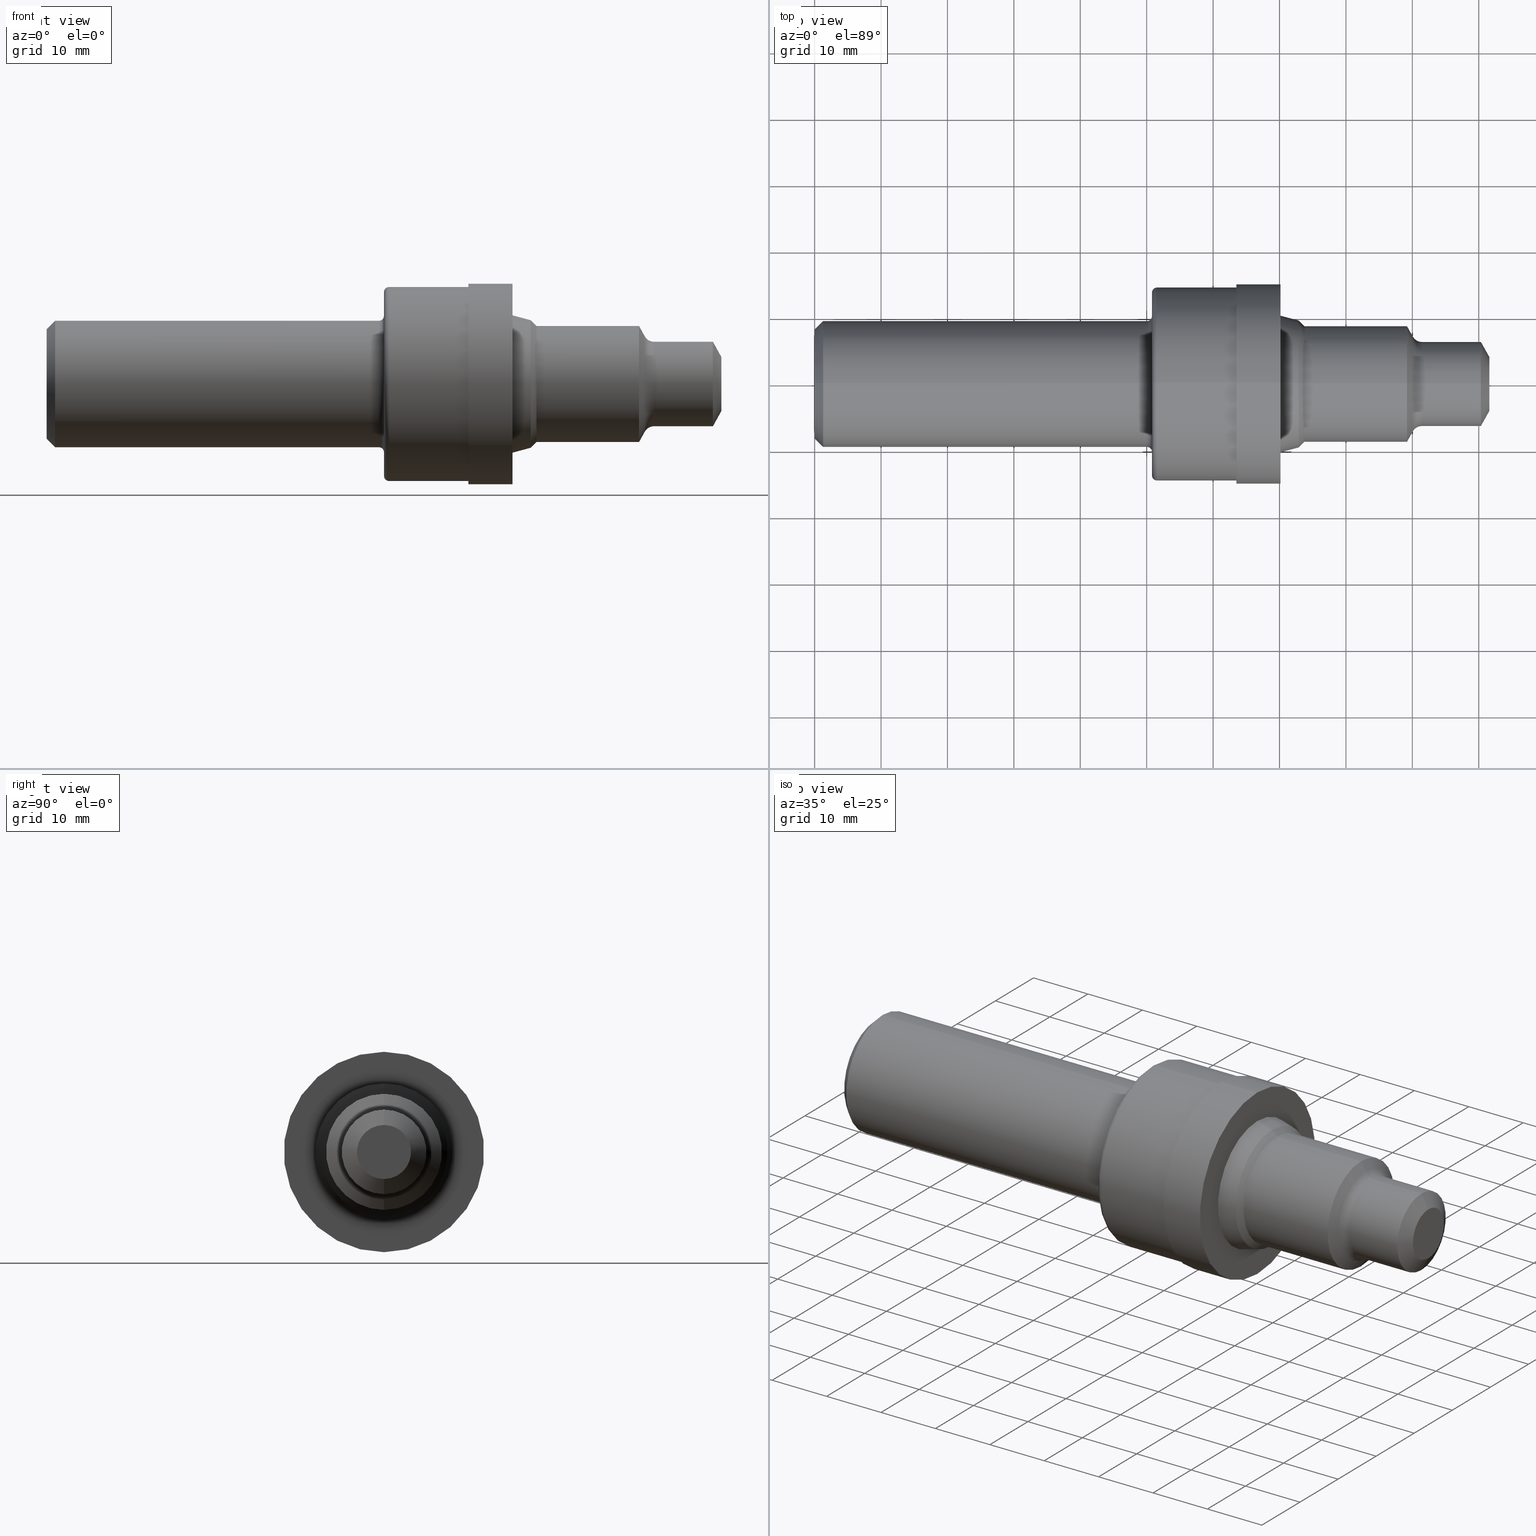
[diagram: canonical four-view strip — front | top / right | iso, engineering-drawing reading convention]
A machine part, canonical four-view strip (front | top / right | iso — engineering-drawing reading convention). The complete STEP part file that produces these views, byte-faithful:
ISO-10303-21;
HEADER;
FILE_DESCRIPTION (( 'STEP AP214' ),
    '1' );
FILE_NAME ('C-08-2-FINISH-X8.STEP',
    '2020-02-03T20:43:14',
    ( '' ),
    ( '' ),
    'SwSTEP 2.0',
    'SolidWorks 2018',
    '' );
FILE_SCHEMA (( 'AUTOMOTIVE_DESIGN' ));
ENDSEC;

DATA;
#1 = CARTESIAN_POINT ( 'NONE',  ( 2.762000000000000011, 0.5939999999999999725, 0.0000000000000000000 ) ) ;
#2 = CARTESIAN_POINT ( 'NONE',  ( 0.05000000000000000278, 0.0000000000000000000, 0.0000000000000000000 ) ) ;
#3 = AXIS2_PLACEMENT_3D ( 'NONE', #599, #469, #66 ) ;
#4 = CARTESIAN_POINT ( 'NONE',  ( 0.0000000000000000000, 0.0000000000000000000, -0.3248500000000001386 ) ) ;
#5 = LINE ( 'NONE', #744, #684 ) ;
#6 = COLOUR_RGB ( '',0.7529411764705882248, 0.7529411764705882248, 0.7529411764705882248 ) ;
#7 = AXIS2_PLACEMENT_3D ( 'NONE', #216, #18, #149 ) ;
#8 = DIRECTION ( 'NONE',  ( -1.000000000000000000, -0.0000000000000000000, -0.0000000000000000000 ) ) ;
#9 = LINE ( 'NONE', #530, #536 ) ;
#10 = ORIENTED_EDGE ( 'NONE', *, *, #431, .F. ) ;
#11 = DIRECTION ( 'NONE',  ( -1.000000000000000000, 0.0000000000000000000, -0.0000000000000000000 ) ) ;
#12 = EDGE_CURVE ( 'NONE', #630, #482, #590, .T. ) ;
#13 = VERTEX_POINT ( 'NONE', #341 ) ;
#14 = CARTESIAN_POINT ( 'NONE',  ( 4.000000000000000000, 0.0000000000000000000, 0.0000000000000000000 ) ) ;
#15 = DIRECTION ( 'NONE',  ( 0.0000000000000000000, 0.0000000000000000000, 1.000000000000000000 ) ) ;
#16 = AXIS2_PLACEMENT_3D ( 'NONE', #393, #761, #325 ) ;
#17 = DIRECTION ( 'NONE',  ( 0.0000000000000000000, 0.0000000000000000000, 1.000000000000000000 ) ) ;
#18 = DIRECTION ( 'NONE',  ( -1.000000000000000000, -0.0000000000000000000, -0.0000000000000000000 ) ) ;
#19 = CYLINDRICAL_SURFACE ( 'NONE', #99, 0.5939999999999999725 ) ;
#20 = CIRCLE ( 'NONE', #136, 0.3440000000000000280 ) ;
#21 = ORIENTED_EDGE ( 'NONE', *, *, #844, .T. ) ;
#22 = ORIENTED_EDGE ( 'NONE', *, *, #374, .F. ) ;
#23 = DIRECTION ( 'NONE',  ( 0.0000000000000000000, 0.0000000000000000000, -1.000000000000000000 ) ) ;
#24 = CARTESIAN_POINT ( 'NONE',  ( 2.029999999999999805, 0.0000000000000000000, 0.0000000000000000000 ) ) ;
#25 = APPLICATION_PROTOCOL_DEFINITION ( 'draft international standard', 'automotive_design', 1998, #682 ) ;
#26 = DIRECTION ( 'NONE',  ( 0.0000000000000000000, 0.0000000000000000000, 1.000000000000000000 ) ) ;
#27 = VECTOR ( 'NONE', #832, 39.37007874015748143 ) ;
#28 = DIRECTION ( 'NONE',  ( 0.0000000000000000000, 0.0000000000000000000, 1.000000000000000000 ) ) ;
#29 = DIRECTION ( 'NONE',  ( 0.0000000000000000000, 0.0000000000000000000, 1.000000000000000000 ) ) ;
#30 = CIRCLE ( 'NONE', #305, 0.02999999999999995379 ) ;
#31 = AXIS2_PLACEMENT_3D ( 'NONE', #493, #231, #371 ) ;
#32 = TOROIDAL_SURFACE ( 'NONE', #394, 0.3124000000000000110, 0.06200000000000001343 ) ;
#33 = VECTOR ( 'NONE', #486, 39.37007874015748143 ) ;
#34 = EDGE_CURVE ( 'NONE', #162, #13, #729, .T. ) ;
#35 = DIRECTION ( 'NONE',  ( 0.0000000000000000000, 0.0000000000000000000, 1.000000000000000000 ) ) ;
#36 = ORIENTED_EDGE ( 'NONE', *, *, #12, .T. ) ;
#37 = AXIS2_PLACEMENT_3D ( 'NONE', #591, #400, #769 ) ;
#38 = ORIENTED_EDGE ( 'NONE', *, *, #751, .T. ) ;
#39 = DIRECTION ( 'NONE',  ( -1.000000000000000000, -0.0000000000000000000, -0.0000000000000000000 ) ) ;
#40 =( GEOMETRIC_REPRESENTATION_CONTEXT ( 3 ) GLOBAL_UNCERTAINTY_ASSIGNED_CONTEXT ( ( #733 ) ) GLOBAL_UNIT_ASSIGNED_CONTEXT ( ( #366, #557, #617 ) ) REPRESENTATION_CONTEXT ( 'NONE', 'WORKASPACE' ) );
#41 = CIRCLE ( 'NONE', #538, 0.4069999999999999729 ) ;
#42 = VERTEX_POINT ( 'NONE', #271 ) ;
#43 = CARTESIAN_POINT ( 'NONE',  ( 2.904061487217438398, 0.0000000000000000000, 0.0000000000000000000 ) ) ;
#44 = ORIENTED_EDGE ( 'NONE', *, *, #722, .T. ) ;
#45 = DIRECTION ( 'NONE',  ( -1.000000000000000000, -0.0000000000000000000, -0.0000000000000000000 ) ) ;
#46 = ADVANCED_FACE ( 'NONE', ( #495 ), #740, .T. ) ;
#47 = AXIS2_PLACEMENT_3D ( 'NONE', #404, #628, #760 ) ;
#48 = EDGE_CURVE ( 'NONE', #310, #65, #515, .T. ) ;
#49 = EDGE_LOOP ( 'NONE', ( #150, #789, #694, #274 ) ) ;
#50 = EDGE_LOOP ( 'NONE', ( #735, #432, #413, #174 ) ) ;
#51 = ADVANCED_FACE ( 'NONE', ( #227 ), #683, .T. ) ;
#52 = CYLINDRICAL_SURFACE ( 'NONE', #81, 0.3748500000000002386 ) ;
#53 = AXIS2_PLACEMENT_3D ( 'NONE', #811, #377, #235 ) ;
#54 = VERTEX_POINT ( 'NONE', #462 ) ;
#55 = AXIS2_PLACEMENT_3D ( 'NONE', #294, #428, #29 ) ;
#56 = PLANE ( 'NONE',  #298 ) ;
#57 = CARTESIAN_POINT ( 'NONE',  ( 0.0000000000000000000, 0.0000000000000000000, 0.0000000000000000000 ) ) ;
#58 = EDGE_CURVE ( 'NONE', #42, #753, #407, .T. ) ;
#59 = ORIENTED_EDGE ( 'NONE', *, *, #225, .T. ) ;
#60 = DIRECTION ( 'NONE',  ( 0.0000000000000000000, 0.0000000000000000000, 1.000000000000000000 ) ) ;
#61 = CARTESIAN_POINT ( 'NONE',  ( 2.762000000000000011, 0.0000000000000000000, 0.0000000000000000000 ) ) ;
#62 = CIRCLE ( 'NONE', #408, 0.5939999999999999725 ) ;
#63 = AXIS2_PLACEMENT_3D ( 'NONE', #256, #456, #583 ) ;
#64 = ORIENTED_EDGE ( 'NONE', *, *, #593, .F. ) ;
#65 = VERTEX_POINT ( 'NONE', #70 ) ;
#66 = DIRECTION ( 'NONE',  ( 0.0000000000000000000, 0.0000000000000000000, 1.000000000000000000 ) ) ;
#67 = DIRECTION ( 'NONE',  ( 0.7071067811865483499, 0.0000000000000000000, -0.7071067811865465735 ) ) ;
#68 = CARTESIAN_POINT ( 'NONE',  ( 2.029999999999999805, 0.0000000000000000000, 0.0000000000000000000 ) ) ;
#69 = ORIENTED_EDGE ( 'NONE', *, *, #459, .T. ) ;
#70 = CARTESIAN_POINT ( 'NONE',  ( 2.500000000000000000, 0.0000000000000000000, 0.5939999999999999725 ) ) ;
#71 = FACE_OUTER_BOUND ( 'NONE', #336, .T. ) ;
#72 = DIRECTION ( 'NONE',  ( -1.000000000000000000, -0.0000000000000000000, -0.0000000000000000000 ) ) ;
#73 = CIRCLE ( 'NONE', #677, 0.3440000000000000280 ) ;
#74 = CONICAL_SURFACE ( 'NONE', #542, 0.1601976122364287547, 1.064650843716543616 ) ;
#75 = DIRECTION ( 'NONE',  ( 0.0000000000000000000, 0.0000000000000000000, 1.000000000000000000 ) ) ;
#76 = AXIS2_PLACEMENT_3D ( 'NONE', #454, #644, #75 ) ;
#77 = CARTESIAN_POINT ( 'NONE',  ( 2.029999999999999805, 6.674325055353073759E-17, -0.5449999999999999289 ) ) ;
#78 = EDGE_CURVE ( 'NONE', #426, #270, #748, .T. ) ;
#79 = DIRECTION ( 'NONE',  ( 0.0000000000000000000, 0.0000000000000000000, -1.000000000000000000 ) ) ;
#80 = CARTESIAN_POINT ( 'NONE',  ( 0.05000000000000000278, 0.0000000000000000000, -0.3748500000000000165 ) ) ;
#81 = AXIS2_PLACEMENT_3D ( 'NONE', #716, #771, #752 ) ;
#82 = DIRECTION ( 'NONE',  ( -1.000000000000000000, -0.0000000000000000000, -0.0000000000000000000 ) ) ;
#83 = CARTESIAN_POINT ( 'NONE',  ( 2.904061487217438398, 4.212784989066894949E-17, -0.3440000000000000280 ) ) ;
#84 = EDGE_LOOP ( 'NONE', ( #511, #64 ) ) ;
#85 = FACE_OUTER_BOUND ( 'NONE', #49, .T. ) ;
#86 = FACE_OUTER_BOUND ( 'NONE', #800, .T. ) ;
#87 = CARTESIAN_POINT ( 'NONE',  ( 4.000000000000000000, 0.0000000000000000000, 0.0000000000000000000 ) ) ;
#88 = FILL_AREA_STYLE ('',( #796 ) ) ;
#89 = DIRECTION ( 'NONE',  ( 0.0000000000000000000, 0.0000000000000000000, 1.000000000000000000 ) ) ;
#90 = ORIENTED_EDGE ( 'NONE', *, *, #679, .T. ) ;
#91 = STYLED_ITEM ( 'NONE', ( #815 ), #443 ) ;
#92 = ORIENTED_EDGE ( 'NONE', *, *, #580, .T. ) ;
#93 = EDGE_CURVE ( 'NONE', #475, #54, #30, .T. ) ;
#94 = CARTESIAN_POINT ( 'NONE',  ( 0.0000000000000000000, 0.0000000000000000000, 0.0000000000000000000 ) ) ;
#95 = CARTESIAN_POINT ( 'NONE',  ( 0.0000000000000000000, 7.274401986935277967E-17, -0.5939999999999999725 ) ) ;
#96 = ORIENTED_EDGE ( 'NONE', *, *, #48, .F. ) ;
#97 = TOROIDAL_SURFACE ( 'NONE', #499, 0.4048500000000005428, 0.02999999999999998848 ) ;
#98 = CARTESIAN_POINT ( 'NONE',  ( 2.500000000000000000, 0.0000000000000000000, 0.0000000000000000000 ) ) ;
#99 = AXIS2_PLACEMENT_3D ( 'NONE', #144, #603, #401 ) ;
#100 = DIRECTION ( 'NONE',  ( -1.000000000000000000, -0.0000000000000000000, -0.0000000000000000000 ) ) ;
#101 = CYLINDRICAL_SURFACE ( 'NONE', #267, 0.2504000000000000115 ) ;
#102 = EDGE_CURVE ( 'NONE', #237, #753, #9, .T. ) ;
#103 = LINE ( 'NONE', #285, #764 ) ;
#104 = EDGE_LOOP ( 'NONE', ( #509, #629, #296, #196 ) ) ;
#105 = DIRECTION ( 'NONE',  ( -1.000000000000000000, -0.0000000000000000000, -0.0000000000000000000 ) ) ;
#106 = AXIS2_PLACEMENT_3D ( 'NONE', #77, #541, #406 ) ;
#107 = VERTEX_POINT ( 'NONE', #767 ) ;
#108 = ADVANCED_FACE ( 'NONE', ( #208 ), #32, .F. ) ;
#109 = EDGE_LOOP ( 'NONE', ( #203, #568, #36, #332 ) ) ;
#110 = ORIENTED_EDGE ( 'NONE', *, *, #579, .T. ) ;
#111 = CIRCLE ( 'NONE', #327, 0.4069999999999999729 ) ;
#112 = CARTESIAN_POINT ( 'NONE',  ( 3.600404118234053374, 3.262102722415191411E-17, -0.2503999999999999559 ) ) ;
#113 = ADVANCED_FACE ( 'NONE', ( #665 ), #192, .T. ) ;
#114 = ORIENTED_EDGE ( 'NONE', *, *, #679, .F. ) ;
#115 = AXIS2_PLACEMENT_3D ( 'NONE', #98, #563, #26 ) ;
#116 = ORIENTED_EDGE ( 'NONE', *, *, #715, .F. ) ;
#117 = CIRCLE ( 'NONE', #115, 0.5749999999999999556 ) ;
#118 = AXIS2_PLACEMENT_3D ( 'NONE', #2, #660, #79 ) ;
#119 = DIRECTION ( 'NONE',  ( -1.000000000000000000, -0.0000000000000000000, -0.0000000000000000000 ) ) ;
#120 = CIRCLE ( 'NONE', #106, 0.02999999999999995379 ) ;
#121 = CARTESIAN_POINT ( 'NONE',  ( 3.546177696391410894, 0.0000000000000000000, 0.0000000000000000000 ) ) ;
#122 = ORIENTED_EDGE ( 'NONE', *, *, #211, .F. ) ;
#123 = DIRECTION ( 'NONE',  ( -1.000000000000000000, -0.0000000000000000000, -0.0000000000000000000 ) ) ;
#124 = CLOSED_SHELL ( 'NONE', ( #577, #754, #699, #747, #695, #383, #572, #242, #440, #175, #513, #505, #249, #385, #46, #313, #821, #181, #813, #113, #632, #320, #510, #51, #246, #184, #444, #108, #638, #818, #757 ) ) ;
#125 = SURFACE_STYLE_USAGE ( .BOTH. , #820 ) ;
#126 = EDGE_LOOP ( 'NONE', ( #671, #409, #831, #836 ) ) ;
#127 = CARTESIAN_POINT ( 'NONE',  ( 0.0000000000000000000, 0.0000000000000000000, 0.0000000000000000000 ) ) ;
#128 = CARTESIAN_POINT ( 'NONE',  ( 4.000000000000000000, 1.961854930563913181E-17, -0.1601976122364287547 ) ) ;
#129 = VECTOR ( 'NONE', #213, 39.37007874015748143 ) ;
#130 = AXIS2_PLACEMENT_3D ( 'NONE', #68, #39, #244 ) ;
#131 = DIRECTION ( 'NONE',  ( -1.000000000000000000, -0.0000000000000000000, -0.0000000000000000000 ) ) ;
#132 = ORIENTED_EDGE ( 'NONE', *, *, #687, .T. ) ;
#133 = EDGE_CURVE ( 'NONE', #209, #375, #720, .T. ) ;
#134 = DIRECTION ( 'NONE',  ( 0.0000000000000000000, 0.0000000000000000000, 1.000000000000000000 ) ) ;
#135 = EDGE_LOOP ( 'NONE', ( #792, #152 ) ) ;
#136 = AXIS2_PLACEMENT_3D ( 'NONE', #437, #703, #519 ) ;
#137 = CARTESIAN_POINT ( 'NONE',  ( 2.762000000000000011, 0.0000000000000000000, 0.5939999999999999725 ) ) ;
#138 = ORIENTED_EDGE ( 'NONE', *, *, #403, .F. ) ;
#139 = CIRCLE ( 'NONE', #490, 0.3748500000000000165 ) ;
#140 = AXIS2_PLACEMENT_3D ( 'NONE', #376, #171, #226 ) ;
#141 = DIRECTION ( 'NONE',  ( -1.000000000000000000, -0.0000000000000000000, -0.0000000000000000000 ) ) ;
#142 = LINE ( 'NONE', #705, #645 ) ;
#143 = ORIENTED_EDGE ( 'NONE', *, *, #194, .T. ) ;
#144 = CARTESIAN_POINT ( 'NONE',  ( 0.0000000000000000000, 0.0000000000000000000, 0.0000000000000000000 ) ) ;
#145 = DIRECTION ( 'NONE',  ( 0.0000000000000000000, -1.000000000000000000, 0.0000000000000000000 ) ) ;
#146 = EDGE_CURVE ( 'NONE', #483, #637, #391, .T. ) ;
#147 = ORIENTED_EDGE ( 'NONE', *, *, #751, .F. ) ;
#148 = DIRECTION ( 'NONE',  ( -1.000000000000000000, -0.0000000000000000000, -0.0000000000000000000 ) ) ;
#149 = DIRECTION ( 'NONE',  ( 0.0000000000000000000, 0.0000000000000000000, 1.000000000000000000 ) ) ;
#150 = ORIENTED_EDGE ( 'NONE', *, *, #334, .T. ) ;
#151 = DIRECTION ( 'NONE',  ( -1.000000000000000000, -0.0000000000000000000, -0.0000000000000000000 ) ) ;
#152 = ORIENTED_EDGE ( 'NONE', *, *, #762, .F. ) ;
#153 = SURFACE_STYLE_USAGE ( .BOTH. , #552 ) ;
#154 = CYLINDRICAL_SURFACE ( 'NONE', #842, 0.5749999999999998446 ) ;
#155 = DIRECTION ( 'NONE',  ( -1.000000000000000000, -0.0000000000000000000, -0.0000000000000000000 ) ) ;
#156 = CIRCLE ( 'NONE', #276, 0.03000000000000002318 ) ;
#157 = DIRECTION ( 'NONE',  ( 0.0000000000000000000, 0.0000000000000000000, 1.000000000000000000 ) ) ;
#158 = EDGE_LOOP ( 'NONE', ( #292, #266 ) ) ;
#159 = PRODUCT ( 'C-08-2-FINISH-X8', 'C-08-2-FINISH-X8', '', ( #724 ) ) ;
#160 = ORIENTED_EDGE ( 'NONE', *, *, #822, .T. ) ;
#161 = DIRECTION ( 'NONE',  ( 1.000000000000000000, 0.0000000000000000000, 0.0000000000000000000 ) ) ;
#162 = VERTEX_POINT ( 'NONE', #197 ) ;
#163 = EDGE_CURVE ( 'NONE', #13, #488, #262, .T. ) ;
#164 = LINE ( 'NONE', #498, #342 ) ;
#165 = ORIENTED_EDGE ( 'NONE', *, *, #381, .F. ) ;
#166 = CARTESIAN_POINT ( 'NONE',  ( 2.870000000000000107, 0.0000000000000000000, 0.0000000000000000000 ) ) ;
#167 = AXIS2_PLACEMENT_3D ( 'NONE', #534, #72, #465 ) ;
#168 = VECTOR ( 'NONE', #551, 39.37007874015748143 ) ;
#169 = DIRECTION ( 'NONE',  ( -1.000000000000000000, -0.0000000000000000000, -0.0000000000000000000 ) ) ;
#170 = EDGE_LOOP ( 'NONE', ( #10, #466, #38, #768 ) ) ;
#171 = DIRECTION ( 'NONE',  ( -1.000000000000000000, -0.0000000000000000000, -0.0000000000000000000 ) ) ;
#172 = CARTESIAN_POINT ( 'NONE',  ( 1.969999999999999973, 0.0000000000000000000, 0.3748500000000005161 ) ) ;
#173 = ORIENTED_EDGE ( 'NONE', *, *, #236, .T. ) ;
#174 = ORIENTED_EDGE ( 'NONE', *, *, #284, .T. ) ;
#175 = ADVANCED_FACE ( 'NONE', ( #340 ), #240, .T. ) ;
#176 = LINE ( 'NONE', #669, #168 ) ;
#177 = CIRCLE ( 'NONE', #592, 0.3748500000000000165 ) ;
#178 = ORIENTED_EDGE ( 'NONE', *, *, #535, .F. ) ;
#179 = ORIENTED_EDGE ( 'NONE', *, *, #739, .T. ) ;
#180 = AXIS2_PLACEMENT_3D ( 'NONE', #647, #512, #652 ) ;
#181 = ADVANCED_FACE ( 'NONE', ( #250, #71 ), #706, .F. ) ;
#182 = EDGE_CURVE ( 'NONE', #637, #253, #247, .T. ) ;
#183 = PRODUCT_DEFINITION_CONTEXT ( 'detailed design', #682, 'design' ) ;
#184 = ADVANCED_FACE ( 'NONE', ( #807 ), #804, .T. ) ;
#185 = AXIS2_PLACEMENT_3D ( 'NONE', #268, #402, #206 ) ;
#186 = VECTOR ( 'NONE', #337, 39.37007874015748143 ) ;
#187 = LINE ( 'NONE', #790, #803 ) ;
#188 = FILL_AREA_STYLE_COLOUR ( '', #201 ) ;
#189 = DIMENSIONAL_EXPONENTS ( 1.000000000000000000, 0.0000000000000000000, 0.0000000000000000000, 0.0000000000000000000, 0.0000000000000000000, 0.0000000000000000000, 0.0000000000000000000 ) ;
#190 = AXIS2_PLACEMENT_3D ( 'NONE', #546, #788, #281 ) ;
#191 =( CONVERSION_BASED_UNIT ( 'INCH', #634 ) LENGTH_UNIT ( ) NAMED_UNIT ( #389 ) );
#192 = CYLINDRICAL_SURFACE ( 'NONE', #569, 0.5749999999999998446 ) ;
#193 = ORIENTED_EDGE ( 'NONE', *, *, #715, .T. ) ;
#194 = EDGE_CURVE ( 'NONE', #319, #65, #142, .T. ) ;
#195 = CARTESIAN_POINT ( 'NONE',  ( 2.762000000000000011, 0.0000000000000000000, 0.4069999999999999729 ) ) ;
#196 = ORIENTED_EDGE ( 'NONE', *, *, #93, .F. ) ;
#197 = CARTESIAN_POINT ( 'NONE',  ( 3.950000000000000178, 0.0000000000000000000, 0.2504000000000000115 ) ) ;
#198 = DIRECTION ( 'NONE',  ( 0.0000000000000000000, 0.0000000000000000000, 1.000000000000000000 ) ) ;
#199 = DIRECTION ( 'NONE',  ( 0.0000000000000000000, 0.0000000000000000000, 1.000000000000000000 ) ) ;
#200 = CIRCLE ( 'NONE', #725, 0.2823418035447272101 ) ;
#201 = COLOUR_RGB ( '',0.7529411764705882248, 0.7529411764705882248, 0.7529411764705882248 ) ;
#202 = EDGE_CURVE ( 'NONE', #42, #582, #303, .T. ) ;
#203 = ORIENTED_EDGE ( 'NONE', *, *, #78, .F. ) ;
#204 = DIRECTION ( 'NONE',  ( -0.9659258262890682012, 3.169619151431768023E-17, -0.2588190451025210170 ) ) ;
#205 = DIRECTION ( 'NONE',  ( 0.0000000000000000000, 0.0000000000000000000, 1.000000000000000000 ) ) ;
#206 = DIRECTION ( 'NONE',  ( 0.0000000000000000000, 0.0000000000000000000, 1.000000000000000000 ) ) ;
#207 = ORIENTED_EDGE ( 'NONE', *, *, #580, .F. ) ;
#208 = FACE_OUTER_BOUND ( 'NONE', #50, .T. ) ;
#209 = VERTEX_POINT ( 'NONE', #517 ) ;
#210 = LINE ( 'NONE', #372, #537 ) ;
#211 = EDGE_CURVE ( 'NONE', #549, #468, #120, .T. ) ;
#212 = DIRECTION ( 'NONE',  ( 0.0000000000000000000, 0.0000000000000000000, 1.000000000000000000 ) ) ;
#213 = DIRECTION ( 'NONE',  ( -1.000000000000000000, -0.0000000000000000000, -0.0000000000000000000 ) ) ;
#214 = AXIS2_PLACEMENT_3D ( 'NONE', #612, #221, #89 ) ;
#215 = ORIENTED_EDGE ( 'NONE', *, *, #163, .F. ) ;
#216 = CARTESIAN_POINT ( 'NONE',  ( 3.950000000000000178, 0.0000000000000000000, 0.0000000000000000000 ) ) ;
#217 = CIRCLE ( 'NONE', #828, 0.2503999999999999559 ) ;
#218 = ORIENTED_EDGE ( 'NONE', *, *, #459, .F. ) ;
#219 = ORIENTED_EDGE ( 'NONE', *, *, #447, .T. ) ;
#220 = APPLICATION_PROTOCOL_DEFINITION ( 'draft international standard', 'automotive_design', 1998, #797 ) ;
#221 = DIRECTION ( 'NONE',  ( -1.000000000000000000, -0.0000000000000000000, -0.0000000000000000000 ) ) ;
#222 = DIRECTION ( 'NONE',  ( -1.000000000000000000, -0.0000000000000000000, -0.0000000000000000000 ) ) ;
#223 = CARTESIAN_POINT ( 'NONE',  ( 2.870000000000000107, 0.0000000000000000000, 0.3780614872174387076 ) ) ;
#224 = ORIENTED_EDGE ( 'NONE', *, *, #243, .F. ) ;
#225 = EDGE_CURVE ( 'NONE', #237, #356, #326, .T. ) ;
#226 = DIRECTION ( 'NONE',  ( 0.0000000000000000000, 0.0000000000000000000, 1.000000000000000000 ) ) ;
#227 = FACE_OUTER_BOUND ( 'NONE', #109, .T. ) ;
#228 = CIRCLE ( 'NONE', #37, 0.5449999999999999289 ) ;
#229 = DIRECTION ( 'NONE',  ( -1.000000000000000000, -0.0000000000000000000, -0.0000000000000000000 ) ) ;
#230 = EDGE_CURVE ( 'NONE', #356, #833, #783, .T. ) ;
#231 = DIRECTION ( 'NONE',  ( -1.000000000000000000, -0.0000000000000000000, -0.0000000000000000000 ) ) ;
#232 = EDGE_LOOP ( 'NONE', ( #178, #819, #234, #218 ) ) ;
#233 = AXIS2_PLACEMENT_3D ( 'NONE', #14, #477, #608 ) ;
#234 = ORIENTED_EDGE ( 'NONE', *, *, #555, .T. ) ;
#235 = DIRECTION ( 'NONE',  ( 0.0000000000000000000, 0.0000000000000000000, 1.000000000000000000 ) ) ;
#236 = EDGE_CURVE ( 'NONE', #483, #488, #473, .T. ) ;
#237 = VERTEX_POINT ( 'NONE', #4 ) ;
#238 = CONICAL_SURFACE ( 'NONE', #370, 0.3440000000000000280, 0.7853981633974532750 ) ;
#239 = CARTESIAN_POINT ( 'NONE',  ( 3.512000000000000011, 0.0000000000000000000, 0.0000000000000000000 ) ) ;
#240 = TOROIDAL_SURFACE ( 'NONE', #810, 0.5449999999999999289, 0.02999999999999998848 ) ;
#241 = AXIS2_PLACEMENT_3D ( 'NONE', #392, #589, #198 ) ;
#242 = ADVANCED_FACE ( 'NONE', ( #627 ), #436, .T. ) ;
#243 = EDGE_CURVE ( 'NONE', #162, #253, #103, .T. ) ;
#244 = DIRECTION ( 'NONE',  ( 0.0000000000000000000, 0.0000000000000000000, 1.000000000000000000 ) ) ;
#245 = ORIENTED_EDGE ( 'NONE', *, *, #491, .T. ) ;
#246 = ADVANCED_FACE ( 'NONE', ( #606 ), #238, .T. ) ;
#247 = CIRCLE ( 'NONE', #16, 0.06200000000000001343 ) ;
#248 = CIRCLE ( 'NONE', #622, 0.3780614872174387076 ) ;
#249 = ADVANCED_FACE ( 'NONE', ( #279 ), #726, .T. ) ;
#250 = FACE_BOUND ( 'NONE', #84, .T. ) ;
#251 = AXIS2_PLACEMENT_3D ( 'NONE', #410, #8, #343 ) ;
#252 = EDGE_CURVE ( 'NONE', #553, #319, #62, .T. ) ;
#253 = VERTEX_POINT ( 'NONE', #352 ) ;
#254 =( NAMED_UNIT ( * ) SI_UNIT ( $, .STERADIAN. ) SOLID_ANGLE_UNIT ( ) );
#255 = AXIS2_PLACEMENT_3D ( 'NONE', #57, #119, #829 ) ;
#256 = CARTESIAN_POINT ( 'NONE',  ( 2.000000000000000000, 0.5449999999999999289, 0.0000000000000000000 ) ) ;
#257 = CIRCLE ( 'NONE', #659, 0.3780614872174387076 ) ;
#258 = LINE ( 'NONE', #727, #746 ) ;
#259 = DIRECTION ( 'NONE',  ( -1.000000000000000000, -0.0000000000000000000, -0.0000000000000000000 ) ) ;
#260 = CARTESIAN_POINT ( 'NONE',  ( 0.0000000000000000000, 4.284426826817016124E-17, 0.3248500000000001386 ) ) ;
#261 = CARTESIAN_POINT ( 'NONE',  ( 3.600404118234053374, 0.0000000000000000000, 0.0000000000000000000 ) ) ;
#262 = LINE ( 'NONE', #333, #27 ) ;
#263 = CARTESIAN_POINT ( 'NONE',  ( 3.512000000000000011, 0.0000000000000000000, 0.3440000000000000280 ) ) ;
#264 = ORIENTED_EDGE ( 'NONE', *, *, #805, .T. ) ;
#265 = CARTESIAN_POINT ( 'NONE',  ( 2.870000000000000107, 4.629917902017243096E-17, -0.3780614872174387076 ) ) ;
#266 = ORIENTED_EDGE ( 'NONE', *, *, #48, .T. ) ;
#267 = AXIS2_PLACEMENT_3D ( 'NONE', #297, #229, #368 ) ;
#268 = CARTESIAN_POINT ( 'NONE',  ( 2.870000000000000107, 0.0000000000000000000, 0.0000000000000000000 ) ) ;
#269 = EDGE_CURVE ( 'NONE', #422, #770, #258, .T. ) ;
#270 = VERTEX_POINT ( 'NONE', #785 ) ;
#271 = CARTESIAN_POINT ( 'NONE',  ( 1.969999999999999973, 4.590588526603859294E-17, -0.3748500000000005161 ) ) ;
#272 = AXIS2_PLACEMENT_3D ( 'NONE', #239, #105, #501 ) ;
#273 = CARTESIAN_POINT ( 'NONE',  ( 0.0000000000000000000, 0.0000000000000000000, 0.0000000000000000000 ) ) ;
#274 = ORIENTED_EDGE ( 'NONE', *, *, #555, .F. ) ;
#275 = CARTESIAN_POINT ( 'NONE',  ( 2.762000000000000011, 0.0000000000000000000, 0.0000000000000000000 ) ) ;
#276 = AXIS2_PLACEMENT_3D ( 'NONE', #605, #145, #667 ) ;
#277 = CARTESIAN_POINT ( 'NONE',  ( 4.000000000000000000, 0.1601976122364287547, 0.0000000000000000000 ) ) ;
#278 = CIRCLE ( 'NONE', #251, 0.3748500000000005161 ) ;
#279 = FACE_OUTER_BOUND ( 'NONE', #840, .T. ) ;
#280 = CARTESIAN_POINT ( 'NONE',  ( 0.0000000000000000000, 0.0000000000000000000, 0.0000000000000000000 ) ) ;
#281 = DIRECTION ( 'NONE',  ( 0.0000000000000000000, 0.0000000000000000000, 1.000000000000000000 ) ) ;
#282 = ORIENTED_EDGE ( 'NONE', *, *, #230, .F. ) ;
#283 = DIRECTION ( 'NONE',  ( -0.7071067811865440200, 8.659560562354975999E-17, -0.7071067811865510144 ) ) ;
#284 = EDGE_CURVE ( 'NONE', #253, #488, #588, .T. ) ;
#285 = CARTESIAN_POINT ( 'NONE',  ( 0.0000000000000000000, 0.0000000000000000000, 0.2504000000000000115 ) ) ;
#286 = ORIENTED_EDGE ( 'NONE', *, *, #579, .F. ) ;
#287 = EDGE_LOOP ( 'NONE', ( #347, #69, #398, #138 ) ) ;
#288 = CARTESIAN_POINT ( 'NONE',  ( 2.000000000000000000, 0.0000000000000000000, 0.0000000000000000000 ) ) ;
#289 = EDGE_LOOP ( 'NONE', ( #635, #395, #623, #712 ) ) ;
#290 = CARTESIAN_POINT ( 'NONE',  ( 2.500000000000000000, 0.0000000000000000000, 0.5749999999999999556 ) ) ;
#291 = DIRECTION ( 'NONE',  ( 0.0000000000000000000, 0.0000000000000000000, 1.000000000000000000 ) ) ;
#292 = ORIENTED_EDGE ( 'NONE', *, *, #317, .T. ) ;
#293 = CYLINDRICAL_SURFACE ( 'NONE', #411, 0.2504000000000000115 ) ;
#294 = CARTESIAN_POINT ( 'NONE',  ( 2.000000000000000000, 0.0000000000000000000, 0.0000000000000000000 ) ) ;
#295 =( LENGTH_UNIT ( ) NAMED_UNIT ( * ) SI_UNIT ( $, .METRE. ) );
#296 = ORIENTED_EDGE ( 'NONE', *, *, #566, .F. ) ;
#297 = CARTESIAN_POINT ( 'NONE',  ( 0.0000000000000000000, 0.0000000000000000000, 0.0000000000000000000 ) ) ;
#298 = AXIS2_PLACEMENT_3D ( 'NONE', #1, #766, #640 ) ;
#299 = EDGE_CURVE ( 'NONE', #707, #330, #416, .T. ) ;
#300 = ORIENTED_EDGE ( 'NONE', *, *, #521, .F. ) ;
#301 = DIRECTION ( 'NONE',  ( -1.000000000000000000, -0.0000000000000000000, -0.0000000000000000000 ) ) ;
#302 = FACE_BOUND ( 'NONE', #646, .T. ) ;
#303 = CIRCLE ( 'NONE', #779, 0.03000000000000002318 ) ;
#304 = DIRECTION ( 'NONE',  ( -0.4848096202463353377, 0.0000000000000000000, 0.8746197071393967404 ) ) ;
#305 = AXIS2_PLACEMENT_3D ( 'NONE', #458, #837, #399 ) ;
#306 = ORIENTED_EDGE ( 'NONE', *, *, #163, .T. ) ;
#307 = CARTESIAN_POINT ( 'NONE',  ( 2.904061487217438398, 4.421351445542069330E-17, -0.3440000000000000280 ) ) ;
#308 = DIRECTION ( 'NONE',  ( -1.000000000000000000, -0.0000000000000000000, -0.0000000000000000000 ) ) ;
#309 = CARTESIAN_POINT ( 'NONE',  ( 2.000000000000000000, 0.0000000000000000000, 0.4048500000000005428 ) ) ;
#310 = VERTEX_POINT ( 'NONE', #666 ) ;
#311 = EDGE_LOOP ( 'NONE', ( #282, #662, #441, #90 ) ) ;
#312 = AXIS2_PLACEMENT_3D ( 'NONE', #94, #415, #350 ) ;
#313 = ADVANCED_FACE ( 'NONE', ( #86 ), #548, .T. ) ;
#314 = EDGE_LOOP ( 'NONE', ( #689, #173, #460, #780 ) ) ;
#315 = FACE_OUTER_BOUND ( 'NONE', #676, .T. ) ;
#316 = AXIS2_PLACEMENT_3D ( 'NONE', #795, #424, #28 ) ;
#317 = EDGE_CURVE ( 'NONE', #65, #310, #710, .T. ) ;
#318 = PLANE ( 'NONE',  #180 ) ;
#319 = VERTEX_POINT ( 'NONE', #137 ) ;
#320 = ADVANCED_FACE ( 'NONE', ( #378 ), #19, .T. ) ;
#321 = DIRECTION ( 'NONE',  ( 0.0000000000000000000, -1.224646799147352221E-16, 1.000000000000000000 ) ) ;
#322 = ORIENTED_EDGE ( 'NONE', *, *, #419, .T. ) ;
#323 =( NAMED_UNIT ( * ) PLANE_ANGLE_UNIT ( ) SI_UNIT ( $, .RADIAN. ) );
#324 = CONICAL_SURFACE ( 'NONE', #31, 0.1601976122364287547, 1.064650843716543616 ) ;
#325 = DIRECTION ( 'NONE',  ( 0.0000000000000000000, 0.0000000000000000000, -1.000000000000000000 ) ) ;
#326 = CIRCLE ( 'NONE', #476, 0.3248500000000001386 ) ;
#327 = AXIS2_PLACEMENT_3D ( 'NONE', #481, #151, #610 ) ;
#328 = DIRECTION ( 'NONE',  ( 0.0000000000000000000, 0.0000000000000000000, 1.000000000000000000 ) ) ;
#329 = EDGE_LOOP ( 'NONE', ( #286, #565 ) ) ;
#330 = VERTEX_POINT ( 'NONE', #307 ) ;
#331 = DIRECTION ( 'NONE',  ( 0.0000000000000000000, 0.0000000000000000000, 1.000000000000000000 ) ) ;
#332 = ORIENTED_EDGE ( 'NONE', *, *, #793, .F. ) ;
#333 = CARTESIAN_POINT ( 'NONE',  ( 0.0000000000000000000, 3.066515585064972173E-17, -0.2504000000000000115 ) ) ;
#334 = EDGE_CURVE ( 'NONE', #637, #483, #200, .T. ) ;
#335 = FACE_OUTER_BOUND ( 'NONE', #594, .T. ) ;
#336 = EDGE_LOOP ( 'NONE', ( #351, #839 ) ) ;
#337 = DIRECTION ( 'NONE',  ( -1.000000000000000000, -0.0000000000000000000, -0.0000000000000000000 ) ) ;
#338 = ORIENTED_EDGE ( 'NONE', *, *, #230, .T. ) ;
#339 = CARTESIAN_POINT ( 'NONE',  ( 3.546177696391410894, 3.835237424416152183E-17, -0.2823418035447272101 ) ) ;
#340 = FACE_OUTER_BOUND ( 'NONE', #104, .T. ) ;
#341 = CARTESIAN_POINT ( 'NONE',  ( 3.950000000000000178, 3.066515585064972173E-17, -0.2504000000000000115 ) ) ;
#342 = VECTOR ( 'NONE', #308, 39.37007874015748143 ) ;
#343 = DIRECTION ( 'NONE',  ( 0.0000000000000000000, 0.0000000000000000000, 1.000000000000000000 ) ) ;
#344 = EDGE_CURVE ( 'NONE', #482, #270, #41, .T. ) ;
#345 = DIRECTION ( 'NONE',  ( -1.000000000000000000, -0.0000000000000000000, -0.0000000000000000000 ) ) ;
#346 = AXIS2_PLACEMENT_3D ( 'NONE', #121, #522, #60 ) ;
#347 = ORIENTED_EDGE ( 'NONE', *, *, #299, .F. ) ;
#348 = CARTESIAN_POINT ( 'NONE',  ( 0.0000000000000000000, 4.212784989066894949E-17, -0.3440000000000000280 ) ) ;
#349 = CARTESIAN_POINT ( 'NONE',  ( 2.904061487217438398, 0.0000000000000000000, 0.3440000000000000280 ) ) ;
#350 = DIRECTION ( 'NONE',  ( 1.000000000000000000, 0.0000000000000000000, 0.0000000000000000000 ) ) ;
#351 = ORIENTED_EDGE ( 'NONE', *, *, #566, .T. ) ;
#352 = CARTESIAN_POINT ( 'NONE',  ( 3.600404118234053374, 0.0000000000000000000, 0.2503999999999999559 ) ) ;
#353 = DIRECTION ( 'NONE',  ( -1.000000000000000000, -0.0000000000000000000, -0.0000000000000000000 ) ) ;
#354 = FACE_OUTER_BOUND ( 'NONE', #544, .T. ) ;
#355 = FACE_OUTER_BOUND ( 'NONE', #232, .T. ) ;
#356 = VERTEX_POINT ( 'NONE', #260 ) ;
#357 = VERTEX_POINT ( 'NONE', #309 ) ;
#358 = DIRECTION ( 'NONE',  ( 0.0000000000000000000, 0.0000000000000000000, 1.000000000000000000 ) ) ;
#359 = DIRECTION ( 'NONE',  ( -1.000000000000000000, -0.0000000000000000000, -0.0000000000000000000 ) ) ;
#360 = CARTESIAN_POINT ( 'NONE',  ( 1.969999999999999973, 0.0000000000000000000, 0.0000000000000000000 ) ) ;
#361 = ORIENTED_EDGE ( 'NONE', *, *, #633, .T. ) ;
#362 = UNCERTAINTY_MEASURE_WITH_UNIT (LENGTH_MEASURE( 1.000000000000000082E-05 ), #191, 'distance_accuracy_value', 'NONE');
#363 = CARTESIAN_POINT ( 'NONE',  ( 1.969999999999999973, 0.0000000000000000000, 0.0000000000000000000 ) ) ;
#364 = AXIS2_PLACEMENT_3D ( 'NONE', #288, #674, #558 ) ;
#365 = EDGE_CURVE ( 'NONE', #356, #237, #692, .T. ) ;
#366 =( CONVERSION_BASED_UNIT ( 'INCH', #719 ) LENGTH_UNIT ( ) NAMED_UNIT ( #825 ) );
#367 = CARTESIAN_POINT ( 'NONE',  ( 2.029999999999999805, 0.0000000000000000000, 0.0000000000000000000 ) ) ;
#368 = DIRECTION ( 'NONE',  ( 0.0000000000000000000, 0.0000000000000000000, 1.000000000000000000 ) ) ;
#369 = CIRCLE ( 'NONE', #649, 0.5449999999999999289 ) ;
#370 = AXIS2_PLACEMENT_3D ( 'NONE', #672, #155, #358 ) ;
#371 = DIRECTION ( 'NONE',  ( 0.0000000000000000000, 0.0000000000000000000, 1.000000000000000000 ) ) ;
#372 = CARTESIAN_POINT ( 'NONE',  ( 3.546177696391410894, 3.457689859765410033E-17, -0.2823418035447272101 ) ) ;
#373 = MECHANICAL_DESIGN_GEOMETRIC_PRESENTATION_REPRESENTATION (  '', ( #587 ), #573 ) ;
#374 = EDGE_CURVE ( 'NONE', #488, #253, #217, .T. ) ;
#375 = VERTEX_POINT ( 'NONE', #450 ) ;
#376 = CARTESIAN_POINT ( 'NONE',  ( 0.0000000000000000000, 0.0000000000000000000, 0.0000000000000000000 ) ) ;
#377 = DIRECTION ( 'NONE',  ( -1.000000000000000000, -0.0000000000000000000, -0.0000000000000000000 ) ) ;
#378 = FACE_OUTER_BOUND ( 'NONE', #492, .T. ) ;
#379 = ORIENTED_EDGE ( 'NONE', *, *, #447, .F. ) ;
#380 = EDGE_LOOP ( 'NONE', ( #245, #433, #670, #613 ) ) ;
#381 = EDGE_CURVE ( 'NONE', #107, #834, #527, .T. ) ;
#382 = DIRECTION ( 'NONE',  ( -1.000000000000000000, -0.0000000000000000000, -0.0000000000000000000 ) ) ;
#383 = ADVANCED_FACE ( 'NONE', ( #354 ), #693, .T. ) ;
#384 = FILL_AREA_STYLE ('',( #188 ) ) ;
#385 = ADVANCED_FACE ( 'NONE', ( #570 ), #318, .F. ) ;
#386 = DIRECTION ( 'NONE',  ( -1.000000000000000000, -0.0000000000000000000, -0.0000000000000000000 ) ) ;
#387 = ORIENTED_EDGE ( 'NONE', *, *, #317, .F. ) ;
#388 = TOROIDAL_SURFACE ( 'NONE', #76, 0.4048500000000005428, 0.02999999999999998848 ) ;
#389 = DIMENSIONAL_EXPONENTS ( 1.000000000000000000, 0.0000000000000000000, 0.0000000000000000000, 0.0000000000000000000, 0.0000000000000000000, 0.0000000000000000000, 0.0000000000000000000 ) ;
#390 = CARTESIAN_POINT ( 'NONE',  ( 1.969999999999999973, 4.957982566348065676E-17, -0.4048500000000005428 ) ) ;
#391 = CIRCLE ( 'NONE', #346, 0.2823418035447272101 ) ;
#392 = CARTESIAN_POINT ( 'NONE',  ( 2.500000000000000000, 0.0000000000000000000, 0.0000000000000000000 ) ) ;
#393 = CARTESIAN_POINT ( 'NONE',  ( 3.600404118234053374, 0.0000000000000000000, 0.3124000000000000110 ) ) ;
#394 = AXIS2_PLACEMENT_3D ( 'NONE', #261, #714, #654 ) ;
#395 = ORIENTED_EDGE ( 'NONE', *, *, #521, .T. ) ;
#396 = CARTESIAN_POINT ( 'NONE',  ( 2.029999999999999805, 0.0000000000000000000, 0.0000000000000000000 ) ) ;
#397 = VECTOR ( 'NONE', #148, 39.37007874015748143 ) ;
#398 = ORIENTED_EDGE ( 'NONE', *, *, #269, .T. ) ;
#399 = DIRECTION ( 'NONE',  ( 0.0000000000000000000, 0.0000000000000000000, -1.000000000000000000 ) ) ;
#400 = DIRECTION ( 'NONE',  ( -1.000000000000000000, -0.0000000000000000000, -0.0000000000000000000 ) ) ;
#401 = DIRECTION ( 'NONE',  ( 0.0000000000000000000, 0.0000000000000000000, 1.000000000000000000 ) ) ;
#402 = DIRECTION ( 'NONE',  ( -1.000000000000000000, -0.0000000000000000000, -0.0000000000000000000 ) ) ;
#403 = EDGE_CURVE ( 'NONE', #330, #770, #20, .T. ) ;
#404 = CARTESIAN_POINT ( 'NONE',  ( 3.546177696391410894, 0.0000000000000000000, 0.0000000000000000000 ) ) ;
#405 = FACE_OUTER_BOUND ( 'NONE', #329, .T. ) ;
#406 = DIRECTION ( 'NONE',  ( 0.0000000000000000000, -1.224646799147354933E-16, 1.000000000000000000 ) ) ;
#407 = LINE ( 'NONE', #774, #186 ) ;
#408 = AXIS2_PLACEMENT_3D ( 'NONE', #275, #607, #668 ) ;
#409 = ORIENTED_EDGE ( 'NONE', *, *, #202, .T. ) ;
#410 = CARTESIAN_POINT ( 'NONE',  ( 1.969999999999999973, 0.0000000000000000000, 0.0000000000000000000 ) ) ;
#411 = AXIS2_PLACEMENT_3D ( 'NONE', #470, #141, #414 ) ;
#412 = ORIENTED_EDGE ( 'NONE', *, *, #365, .T. ) ;
#413 = ORIENTED_EDGE ( 'NONE', *, *, #182, .T. ) ;
#414 = DIRECTION ( 'NONE',  ( 0.0000000000000000000, 0.0000000000000000000, 1.000000000000000000 ) ) ;
#415 = DIRECTION ( 'NONE',  ( 0.0000000000000000000, 0.0000000000000000000, 1.000000000000000000 ) ) ;
#416 = LINE ( 'NONE', #348, #397 ) ;
#417 = VECTOR ( 'NONE', #835, 39.37007874015748143 ) ;
#418 = DIRECTION ( 'NONE',  ( -1.000000000000000000, -0.0000000000000000000, -0.0000000000000000000 ) ) ;
#419 = EDGE_CURVE ( 'NONE', #549, #475, #528, .T. ) ;
#420 = DIRECTION ( 'NONE',  ( 0.0000000000000000000, 0.0000000000000000000, 1.000000000000000000 ) ) ;
#421 =( NAMED_UNIT ( * ) PLANE_ANGLE_UNIT ( ) SI_UNIT ( $, .RADIAN. ) );
#422 = VERTEX_POINT ( 'NONE', #263 ) ;
#423 = CARTESIAN_POINT ( 'NONE',  ( 0.05000000000000000278, 4.590588526603853748E-17, 0.3748500000000000165 ) ) ;
#424 = DIRECTION ( 'NONE',  ( -1.000000000000000000, -0.0000000000000000000, -0.0000000000000000000 ) ) ;
#425 = FACE_BOUND ( 'NONE', #502, .T. ) ;
#426 = VERTEX_POINT ( 'NONE', #827 ) ;
#427 = CIRCLE ( 'NONE', #55, 0.4048500000000005428 ) ;
#428 = DIRECTION ( 'NONE',  ( -1.000000000000000000, -0.0000000000000000000, -0.0000000000000000000 ) ) ;
#429 = DIRECTION ( 'NONE',  ( 0.0000000000000000000, 0.0000000000000000000, 1.000000000000000000 ) ) ;
#430 = DIRECTION ( 'NONE',  ( -1.000000000000000000, -0.0000000000000000000, -0.0000000000000000000 ) ) ;
#431 = EDGE_CURVE ( 'NONE', #107, #549, #675, .T. ) ;
#432 = ORIENTED_EDGE ( 'NONE', *, *, #334, .F. ) ;
#433 = ORIENTED_EDGE ( 'NONE', *, *, #78, .T. ) ;
#434 = FACE_OUTER_BOUND ( 'NONE', #711, .T. ) ;
#435 = AXIS2_PLACEMENT_3D ( 'NONE', #709, #259, #650 ) ;
#436 = CYLINDRICAL_SURFACE ( 'NONE', #214, 0.5939999999999999725 ) ;
#437 = CARTESIAN_POINT ( 'NONE',  ( 2.904061487217438398, 0.0000000000000000000, 0.0000000000000000000 ) ) ;
#438 = DIRECTION ( 'NONE',  ( -1.000000000000000000, -0.0000000000000000000, -0.0000000000000000000 ) ) ;
#439 = CARTESIAN_POINT ( 'NONE',  ( 2.904061487217438398, 0.0000000000000000000, 0.0000000000000000000 ) ) ;
#440 = ADVANCED_FACE ( 'NONE', ( #335 ), #154, .T. ) ;
#441 = ORIENTED_EDGE ( 'NONE', *, *, #102, .T. ) ;
#442 = EDGE_LOOP ( 'NONE', ( #529, #306, #678, #224 ) ) ;
#443 = MANIFOLD_SOLID_BREP ( 'ECC19826-1559-4f55-854A-3AF1A5CCC5A1-GAAFaceID16', #124 ) ;
#444 = ADVANCED_FACE ( 'NONE', ( #355 ), #736, .T. ) ;
#445 = AXIS2_PLACEMENT_3D ( 'NONE', #681, #161, #620 ) ;
#446 = TOROIDAL_SURFACE ( 'NONE', #453, 0.5449999999999999289, 0.02999999999999998848 ) ;
#447 = EDGE_CURVE ( 'NONE', #770, #330, #73, .T. ) ;
#448 = CARTESIAN_POINT ( 'NONE',  ( 3.546177696391410894, 0.0000000000000000000, 0.0000000000000000000 ) ) ;
#449 = AXIS2_PLACEMENT_3D ( 'NONE', #784, #600, #17 ) ;
#450 = CARTESIAN_POINT ( 'NONE',  ( 4.000000000000000000, 2.514185257814443140E-17, -0.1601976122364287547 ) ) ;
#451 = ORIENTED_EDGE ( 'NONE', *, *, #93, .T. ) ;
#452 = CIRCLE ( 'NONE', #737, 0.5749999999999998446 ) ;
#453 = AXIS2_PLACEMENT_3D ( 'NONE', #24, #353, #673 ) ;
#454 = CARTESIAN_POINT ( 'NONE',  ( 1.969999999999999973, 0.0000000000000000000, 0.0000000000000000000 ) ) ;
#455 = VECTOR ( 'NONE', #824, 39.37007874015748854 ) ;
#456 = DIRECTION ( 'NONE',  ( 1.000000000000000000, 0.0000000000000000000, 0.0000000000000000000 ) ) ;
#457 = ORIENTED_EDGE ( 'NONE', *, *, #471, .T. ) ;
#458 = CARTESIAN_POINT ( 'NONE',  ( 2.029999999999999805, 0.0000000000000000000, 0.5449999999999999289 ) ) ;
#459 = EDGE_CURVE ( 'NONE', #707, #422, #597, .T. ) ;
#460 = ORIENTED_EDGE ( 'NONE', *, *, #374, .T. ) ;
#461 = DIRECTION ( 'NONE',  ( -1.000000000000000000, -0.0000000000000000000, -0.0000000000000000000 ) ) ;
#462 = CARTESIAN_POINT ( 'NONE',  ( 2.000000000000000000, 0.0000000000000000000, 0.5449999999999999289 ) ) ;
#463 = LINE ( 'NONE', #83, #616 ) ;
#464 = DIRECTION ( 'NONE',  ( -1.000000000000000000, -0.0000000000000000000, -0.0000000000000000000 ) ) ;
#465 = DIRECTION ( 'NONE',  ( 0.0000000000000000000, 0.0000000000000000000, 1.000000000000000000 ) ) ;
#466 = ORIENTED_EDGE ( 'NONE', *, *, #381, .T. ) ;
#467 = CARTESIAN_POINT ( 'NONE',  ( 0.05000000000000000278, 4.590588526603853748E-17, 0.3748500000000000165 ) ) ;
#468 = VERTEX_POINT ( 'NONE', #585 ) ;
#469 = DIRECTION ( 'NONE',  ( -1.000000000000000000, -0.0000000000000000000, -0.0000000000000000000 ) ) ;
#470 = CARTESIAN_POINT ( 'NONE',  ( 0.0000000000000000000, 0.0000000000000000000, 0.0000000000000000000 ) ) ;
#471 = EDGE_CURVE ( 'NONE', #833, #753, #177, .T. ) ;
#472 = VECTOR ( 'NONE', #732, 39.37007874015748143 ) ;
#473 = CIRCLE ( 'NONE', #690, 0.06200000000000001343 ) ;
#474 = DIRECTION ( 'NONE',  ( -0.0000000000000000000, 0.0000000000000000000, 1.000000000000000000 ) ) ;
#475 = VERTEX_POINT ( 'NONE', #532 ) ;
#476 = AXIS2_PLACEMENT_3D ( 'NONE', #280, #82, #539 ) ;
#477 = DIRECTION ( 'NONE',  ( -1.000000000000000000, -0.0000000000000000000, -0.0000000000000000000 ) ) ;
#478 =( NAMED_UNIT ( * ) SI_UNIT ( $, .STERADIAN. ) SOLID_ANGLE_UNIT ( ) );
#479 = UNCERTAINTY_MEASURE_WITH_UNIT (LENGTH_MEASURE( 1.000000000000000082E-05 ), #686, 'distance_accuracy_value', 'NONE');
#480 = DIRECTION ( 'NONE',  ( 1.000000000000000000, 0.0000000000000000000, 0.0000000000000000000 ) ) ;
#481 = CARTESIAN_POINT ( 'NONE',  ( 2.762000000000000011, 0.0000000000000000000, 0.0000000000000000000 ) ) ;
#482 = VERTEX_POINT ( 'NONE', #195 ) ;
#483 = VERTEX_POINT ( 'NONE', #339 ) ;
#484 = DIRECTION ( 'NONE',  ( 0.0000000000000000000, -1.224646799147352961E-16, 1.000000000000000000 ) ) ;
#485 = CARTESIAN_POINT ( 'NONE',  ( 2.870000000000000107, 0.0000000000000000000, 0.0000000000000000000 ) ) ;
#486 = DIRECTION ( 'NONE',  ( -0.4848096202463347826, 1.071100224819458088E-16, -0.8746197071393970734 ) ) ;
#487 = FACE_OUTER_BOUND ( 'NONE', #442, .T. ) ;
#488 = VERTEX_POINT ( 'NONE', #112 ) ;
#489 = CARTESIAN_POINT ( 'NONE',  ( 2.000000000000000000, 4.957982566348065676E-17, -0.4048500000000005428 ) ) ;
#490 = AXIS2_PLACEMENT_3D ( 'NONE', #809, #438, #621 ) ;
#491 = EDGE_CURVE ( 'NONE', #630, #426, #248, .T. ) ;
#492 = EDGE_LOOP ( 'NONE', ( #531, #562, #143, #96 ) ) ;
#493 = CARTESIAN_POINT ( 'NONE',  ( 4.000000000000000000, 0.0000000000000000000, 0.0000000000000000000 ) ) ;
#494 = AXIS2_PLACEMENT_3D ( 'NONE', #550, #480, #23 ) ;
#495 = FACE_OUTER_BOUND ( 'NONE', #311, .T. ) ;
#496 = CIRCLE ( 'NONE', #316, 0.5939999999999999725 ) ;
#497 = LENGTH_MEASURE_WITH_UNIT ( LENGTH_MEASURE( 0.02539999999999999897 ), #614 );
#498 = CARTESIAN_POINT ( 'NONE',  ( 0.0000000000000000000, 0.0000000000000000000, 0.3748500000000002386 ) ) ;
#499 = AXIS2_PLACEMENT_3D ( 'NONE', #363, #359, #680 ) ;
#500 = ORIENTED_EDGE ( 'NONE', *, *, #365, .F. ) ;
#501 = DIRECTION ( 'NONE',  ( 0.0000000000000000000, 0.0000000000000000000, 1.000000000000000000 ) ) ;
#502 = EDGE_LOOP ( 'NONE', ( #514, #728 ) ) ;
#503 = CARTESIAN_POINT ( 'NONE',  ( 3.600404118234053374, 0.0000000000000000000, 0.0000000000000000000 ) ) ;
#504 = VERTEX_POINT ( 'NONE', #172 ) ;
#505 = ADVANCED_FACE ( 'NONE', ( #578 ), #52, .T. ) ;
#506 = AXIS2_PLACEMENT_3D ( 'NONE', #596, #131, #533 ) ;
#507 = VECTOR ( 'NONE', #700, 39.37007874015748143 ) ;
#508 = EDGE_CURVE ( 'NONE', #468, #54, #228, .T. ) ;
#509 = ORIENTED_EDGE ( 'NONE', *, *, #643, .T. ) ;
#510 = ADVANCED_FACE ( 'NONE', ( #405, #425 ), #56, .F. ) ;
#511 = ORIENTED_EDGE ( 'NONE', *, *, #822, .F. ) ;
#512 = DIRECTION ( 'NONE',  ( 1.000000000000000000, 0.0000000000000000000, 0.0000000000000000000 ) ) ;
#513 = ADVANCED_FACE ( 'NONE', ( #755 ), #388, .F. ) ;
#514 = ORIENTED_EDGE ( 'NONE', *, *, #344, .T. ) ;
#515 = CIRCLE ( 'NONE', #506, 0.5939999999999999725 ) ;
#516 = FACE_OUTER_BOUND ( 'NONE', #289, .T. ) ;
#517 = CARTESIAN_POINT ( 'NONE',  ( 4.000000000000000000, 0.0000000000000000000, 0.1601976122364287547 ) ) ;
#518 = DIRECTION ( 'NONE',  ( -1.000000000000000000, -0.0000000000000000000, -0.0000000000000000000 ) ) ;
#519 = DIRECTION ( 'NONE',  ( 0.0000000000000000000, 0.0000000000000000000, 1.000000000000000000 ) ) ;
#520 = ORIENTED_EDGE ( 'NONE', *, *, #491, .F. ) ;
#521 = EDGE_CURVE ( 'NONE', #375, #13, #564, .T. ) ;
#522 = DIRECTION ( 'NONE',  ( -1.000000000000000000, -0.0000000000000000000, -0.0000000000000000000 ) ) ;
#523 = ORIENTED_EDGE ( 'NONE', *, *, #602, .F. ) ;
#524 = DIRECTION ( 'NONE',  ( -1.000000000000000000, -0.0000000000000000000, -0.0000000000000000000 ) ) ;
#525 = DIRECTION ( 'NONE',  ( -1.000000000000000000, -0.0000000000000000000, -0.0000000000000000000 ) ) ;
#526 = DIRECTION ( 'NONE',  ( 0.0000000000000000000, 0.0000000000000000000, 1.000000000000000000 ) ) ;
#527 = CIRCLE ( 'NONE', #241, 0.5749999999999999556 ) ;
#528 = CIRCLE ( 'NONE', #130, 0.5749999999999998446 ) ;
#529 = ORIENTED_EDGE ( 'NONE', *, *, #34, .T. ) ;
#530 = CARTESIAN_POINT ( 'NONE',  ( 0.05000000000000000278, 0.0000000000000000000, -0.3748500000000000165 ) ) ;
#531 = ORIENTED_EDGE ( 'NONE', *, *, #619, .F. ) ;
#532 = CARTESIAN_POINT ( 'NONE',  ( 2.029999999999999805, 0.0000000000000000000, 0.5749999999999998446 ) ) ;
#533 = DIRECTION ( 'NONE',  ( 0.0000000000000000000, 0.0000000000000000000, 1.000000000000000000 ) ) ;
#534 = CARTESIAN_POINT ( 'NONE',  ( 3.950000000000000178, 0.0000000000000000000, 0.0000000000000000000 ) ) ;
#535 = EDGE_CURVE ( 'NONE', #483, #707, #210, .T. ) ;
#536 = VECTOR ( 'NONE', #67, 39.37007874015748854 ) ;
#537 = VECTOR ( 'NONE', #806, 39.37007874015748143 ) ;
#538 = AXIS2_PLACEMENT_3D ( 'NONE', #61, #524, #567 ) ;
#539 = DIRECTION ( 'NONE',  ( 0.0000000000000000000, 0.0000000000000000000, 1.000000000000000000 ) ) ;
#540 = ORIENTED_EDGE ( 'NONE', *, *, #58, .F. ) ;
#541 = DIRECTION ( 'NONE',  ( -0.0000000000000000000, 1.000000000000000000, 1.224646799147353207E-16 ) ) ;
#542 = AXIS2_PLACEMENT_3D ( 'NONE', #87, #222, #157 ) ;
#543 = ADVANCED_BREP_SHAPE_REPRESENTATION ( 'C-08-2-FINISH-X8', ( #443, #312 ), #40 ) ;
#544 = EDGE_LOOP ( 'NONE', ( #219, #264, #520, #523 ) ) ;
#545 = PRESENTATION_LAYER_ASSIGNMENT (  '', '', ( #587 ) ) ;
#546 = CARTESIAN_POINT ( 'NONE',  ( 3.546177696391410894, 0.0000000000000000000, 0.0000000000000000000 ) ) ;
#547 = DIRECTION ( 'NONE',  ( -1.000000000000000000, -0.0000000000000000000, -0.0000000000000000000 ) ) ;
#548 = CYLINDRICAL_SURFACE ( 'NONE', #765, 0.3748500000000002386 ) ;
#549 = VERTEX_POINT ( 'NONE', #688 ) ;
#550 = CARTESIAN_POINT ( 'NONE',  ( 0.05000000000000000278, 0.0000000000000000000, 0.0000000000000000000 ) ) ;
#551 = DIRECTION ( 'NONE',  ( -0.4848096202463347826, 0.0000000000000000000, 0.8746197071393970734 ) ) ;
#552 = SURFACE_SIDE_STYLE ('',( #738 ) ) ;
#553 = VERTEX_POINT ( 'NONE', #624 ) ;
#554 = PRESENTATION_LAYER_ASSIGNMENT (  '', '', ( #91 ) ) ;
#555 = EDGE_CURVE ( 'NONE', #637, #422, #5, .T. ) ;
#556 = CARTESIAN_POINT ( 'NONE',  ( 3.600404118234053374, 3.825796600536331329E-17, -0.3124000000000000110 ) ) ;
#557 =( NAMED_UNIT ( * ) PLANE_ANGLE_UNIT ( ) SI_UNIT ( $, .RADIAN. ) );
#558 = DIRECTION ( 'NONE',  ( 0.0000000000000000000, 0.0000000000000000000, 1.000000000000000000 ) ) ;
#559 = ORIENTED_EDGE ( 'NONE', *, *, #643, .F. ) ;
#560 = CARTESIAN_POINT ( 'NONE',  ( 3.600404118234053374, 0.0000000000000000000, 0.0000000000000000000 ) ) ;
#561 = DIRECTION ( 'NONE',  ( -0.7071067811865440200, 0.0000000000000000000, 0.7071067811865510144 ) ) ;
#562 = ORIENTED_EDGE ( 'NONE', *, *, #252, .T. ) ;
#563 = DIRECTION ( 'NONE',  ( -1.000000000000000000, -0.0000000000000000000, -0.0000000000000000000 ) ) ;
#564 = LINE ( 'NONE', #128, #33 ) ;
#565 = ORIENTED_EDGE ( 'NONE', *, *, #252, .F. ) ;
#566 = EDGE_CURVE ( 'NONE', #54, #468, #369, .T. ) ;
#567 = DIRECTION ( 'NONE',  ( 0.0000000000000000000, 0.0000000000000000000, 1.000000000000000000 ) ) ;
#568 = ORIENTED_EDGE ( 'NONE', *, *, #701, .T. ) ;
#569 = AXIS2_PLACEMENT_3D ( 'NONE', #127, #123, #199 ) ;
#570 = FACE_OUTER_BOUND ( 'NONE', #841, .T. ) ;
#571 = ORIENTED_EDGE ( 'NONE', *, *, #471, .F. ) ;
#572 = ADVANCED_FACE ( 'NONE', ( #718 ), #663, .T. ) ;
#573 =( GEOMETRIC_REPRESENTATION_CONTEXT ( 3 ) GLOBAL_UNCERTAINTY_ASSIGNED_CONTEXT ( ( #479 ) ) GLOBAL_UNIT_ASSIGNED_CONTEXT ( ( #686, #421, #478 ) ) REPRESENTATION_CONTEXT ( 'NONE', 'WORKASPACE' ) );
#574 = EDGE_LOOP ( 'NONE', ( #655, #787, #179, #160 ) ) ;
#575 = DIRECTION ( 'NONE',  ( 0.0000000000000000000, 0.0000000000000000000, 1.000000000000000000 ) ) ;
#576 = AXIS2_PLACEMENT_3D ( 'NONE', #560, #777, #420 ) ;
#577 = ADVANCED_FACE ( 'NONE', ( #516 ), #324, .T. ) ;
#578 = FACE_OUTER_BOUND ( 'NONE', #653, .T. ) ;
#579 = EDGE_CURVE ( 'NONE', #319, #553, #496, .T. ) ;
#580 = EDGE_CURVE ( 'NONE', #504, #833, #164, .T. ) ;
#581 =( LENGTH_UNIT ( ) NAMED_UNIT ( * ) SI_UNIT ( $, .METRE. ) );
#582 = VERTEX_POINT ( 'NONE', #489 ) ;
#583 = DIRECTION ( 'NONE',  ( 0.0000000000000000000, 0.0000000000000000000, -1.000000000000000000 ) ) ;
#584 = ORIENTED_EDGE ( 'NONE', *, *, #403, .T. ) ;
#585 = CARTESIAN_POINT ( 'NONE',  ( 2.000000000000000000, 6.858022075225177566E-17, -0.5449999999999999289 ) ) ;
#586 = CIRCLE ( 'NONE', #7, 0.2504000000000000115 ) ;
#587 = STYLED_ITEM ( 'NONE', ( #685 ), #543 ) ;
#588 = CIRCLE ( 'NONE', #449, 0.2503999999999999559 ) ;
#589 = DIRECTION ( 'NONE',  ( -1.000000000000000000, -0.0000000000000000000, -0.0000000000000000000 ) ) ;
#590 = LINE ( 'NONE', #721, #417 ) ;
#591 = CARTESIAN_POINT ( 'NONE',  ( 2.000000000000000000, 0.0000000000000000000, 0.0000000000000000000 ) ) ;
#592 = AXIS2_PLACEMENT_3D ( 'NONE', #595, #657, #205 ) ;
#593 = EDGE_CURVE ( 'NONE', #582, #357, #702, .T. ) ;
#594 = EDGE_LOOP ( 'NONE', ( #778, #658, #559, #147 ) ) ;
#595 = CARTESIAN_POINT ( 'NONE',  ( 0.05000000000000000278, 0.0000000000000000000, 0.0000000000000000000 ) ) ;
#596 = CARTESIAN_POINT ( 'NONE',  ( 2.500000000000000000, 0.0000000000000000000, 0.0000000000000000000 ) ) ;
#597 = CIRCLE ( 'NONE', #272, 0.3440000000000000280 ) ;
#598 = CIRCLE ( 'NONE', #759, 0.3748500000000005161 ) ;
#599 = CARTESIAN_POINT ( 'NONE',  ( 2.500000000000000000, 0.0000000000000000000, 0.0000000000000000000 ) ) ;
#600 = DIRECTION ( 'NONE',  ( -1.000000000000000000, -0.0000000000000000000, -0.0000000000000000000 ) ) ;
#601 = CARTESIAN_POINT ( 'NONE',  ( 0.0000000000000000000, 0.0000000000000000000, 0.5749999999999998446 ) ) ;
#602 = EDGE_CURVE ( 'NONE', #770, #630, #187, .T. ) ;
#603 = DIRECTION ( 'NONE',  ( -1.000000000000000000, -0.0000000000000000000, -0.0000000000000000000 ) ) ;
#604 = TOROIDAL_SURFACE ( 'NONE', #576, 0.3124000000000000110, 0.06200000000000001343 ) ;
#605 = CARTESIAN_POINT ( 'NONE',  ( 1.969999999999999973, 0.0000000000000000000, 0.4048500000000005428 ) ) ;
#606 = FACE_OUTER_BOUND ( 'NONE', #814, .T. ) ;
#607 = DIRECTION ( 'NONE',  ( -1.000000000000000000, -0.0000000000000000000, -0.0000000000000000000 ) ) ;
#608 = DIRECTION ( 'NONE',  ( 0.0000000000000000000, 0.0000000000000000000, 1.000000000000000000 ) ) ;
#609 = DIRECTION ( 'NONE',  ( -1.000000000000000000, -0.0000000000000000000, -0.0000000000000000000 ) ) ;
#610 = DIRECTION ( 'NONE',  ( 0.0000000000000000000, 0.0000000000000000000, 1.000000000000000000 ) ) ;
#611 = ORIENTED_EDGE ( 'NONE', *, *, #602, .T. ) ;
#612 = CARTESIAN_POINT ( 'NONE',  ( 0.0000000000000000000, 0.0000000000000000000, 0.0000000000000000000 ) ) ;
#613 = ORIENTED_EDGE ( 'NONE', *, *, #12, .F. ) ;
#614 =( LENGTH_UNIT ( ) NAMED_UNIT ( * ) SI_UNIT ( $, .METRE. ) );
#615 = PLANE ( 'NONE',  #445 ) ;
#616 = VECTOR ( 'NONE', #283, 39.37007874015748143 ) ;
#617 =( NAMED_UNIT ( * ) SI_UNIT ( $, .STERADIAN. ) SOLID_ANGLE_UNIT ( ) );
#618 = AXIS2_PLACEMENT_3D ( 'NONE', #799, #430, #291 ) ;
#619 = EDGE_CURVE ( 'NONE', #553, #310, #826, .T. ) ;
#620 = DIRECTION ( 'NONE',  ( 0.0000000000000000000, 0.0000000000000000000, -1.000000000000000000 ) ) ;
#621 = DIRECTION ( 'NONE',  ( 0.0000000000000000000, 0.0000000000000000000, 1.000000000000000000 ) ) ;
#622 = AXIS2_PLACEMENT_3D ( 'NONE', #697, #382, #749 ) ;
#623 = ORIENTED_EDGE ( 'NONE', *, *, #34, .F. ) ;
#624 = CARTESIAN_POINT ( 'NONE',  ( 2.762000000000000011, 7.274401986935277967E-17, -0.5939999999999999725 ) ) ;
#625 = FACE_OUTER_BOUND ( 'NONE', #664, .T. ) ;
#626 = SHAPE_DEFINITION_REPRESENTATION ( #845, #543 ) ;
#627 = FACE_OUTER_BOUND ( 'NONE', #830, .T. ) ;
#628 = DIRECTION ( 'NONE',  ( -1.000000000000000000, -0.0000000000000000000, -0.0000000000000000000 ) ) ;
#629 = ORIENTED_EDGE ( 'NONE', *, *, #211, .T. ) ;
#630 = VERTEX_POINT ( 'NONE', #223 ) ;
#631 = ORIENTED_EDGE ( 'NONE', *, *, #508, .F. ) ;
#632 = ADVANCED_FACE ( 'NONE', ( #302, #642 ), #615, .F. ) ;
#633 = EDGE_CURVE ( 'NONE', #422, #707, #781, .T. ) ;
#634 = LENGTH_MEASURE_WITH_UNIT ( LENGTH_MEASURE( 0.02539999999999999897 ), #581 );
#635 = ORIENTED_EDGE ( 'NONE', *, *, #133, .T. ) ;
#636 = CONICAL_SURFACE ( 'NONE', #190, 0.2823418035447272101, 1.064650843716542949 ) ;
#637 = VERTEX_POINT ( 'NONE', #741 ) ;
#638 = ADVANCED_FACE ( 'NONE', ( #625 ), #101, .T. ) ;
#639 = ORIENTED_EDGE ( 'NONE', *, *, #102, .F. ) ;
#640 = DIRECTION ( 'NONE',  ( -0.0000000000000000000, 0.0000000000000000000, 1.000000000000000000 ) ) ;
#641 = ORIENTED_EDGE ( 'NONE', *, *, #269, .F. ) ;
#642 = FACE_OUTER_BOUND ( 'NONE', #158, .T. ) ;
#643 = EDGE_CURVE ( 'NONE', #475, #549, #452, .T. ) ;
#644 = DIRECTION ( 'NONE',  ( -1.000000000000000000, -0.0000000000000000000, -0.0000000000000000000 ) ) ;
#645 = VECTOR ( 'NONE', #518, 39.37007874015748143 ) ;
#646 = EDGE_LOOP ( 'NONE', ( #743, #165 ) ) ;
#647 = CARTESIAN_POINT ( 'NONE',  ( 0.0000000000000000000, 0.0000000000000000000, 0.0000000000000000000 ) ) ;
#648 = EDGE_LOOP ( 'NONE', ( #300, #816, #44, #116 ) ) ;
#649 = AXIS2_PLACEMENT_3D ( 'NONE', #742, #301, #35 ) ;
#650 = DIRECTION ( 'NONE',  ( 0.0000000000000000000, 0.0000000000000000000, 1.000000000000000000 ) ) ;
#651 = PRODUCT_RELATED_PRODUCT_CATEGORY ( 'part', '', ( #159 ) ) ;
#652 = DIRECTION ( 'NONE',  ( 0.0000000000000000000, 0.0000000000000000000, -1.000000000000000000 ) ) ;
#653 = EDGE_LOOP ( 'NONE', ( #21, #823, #571, #207 ) ) ;
#654 = DIRECTION ( 'NONE',  ( 0.0000000000000000000, 0.0000000000000000000, 1.000000000000000000 ) ) ;
#655 = ORIENTED_EDGE ( 'NONE', *, *, #202, .F. ) ;
#656 = FACE_OUTER_BOUND ( 'NONE', #135, .T. ) ;
#657 = DIRECTION ( 'NONE',  ( -1.000000000000000000, -0.0000000000000000000, -0.0000000000000000000 ) ) ;
#658 = ORIENTED_EDGE ( 'NONE', *, *, #431, .T. ) ;
#659 = AXIS2_PLACEMENT_3D ( 'NONE', #485, #418, #786 ) ;
#660 = DIRECTION ( 'NONE',  ( 1.000000000000000000, 0.0000000000000000000, 0.0000000000000000000 ) ) ;
#661 = EDGE_CURVE ( 'NONE', #834, #107, #117, .T. ) ;
#662 = ORIENTED_EDGE ( 'NONE', *, *, #225, .F. ) ;
#663 = CONICAL_SURFACE ( 'NONE', #776, 0.3780614872174387076, 0.2617993877991496854 ) ;
#664 = EDGE_LOOP ( 'NONE', ( #215, #193, #734, #22 ) ) ;
#665 = FACE_OUTER_BOUND ( 'NONE', #170, .T. ) ;
#666 = CARTESIAN_POINT ( 'NONE',  ( 2.500000000000000000, 7.274401986935277967E-17, -0.5939999999999999725 ) ) ;
#667 = DIRECTION ( 'NONE',  ( 0.0000000000000000000, 0.0000000000000000000, -1.000000000000000000 ) ) ;
#668 = DIRECTION ( 'NONE',  ( 0.0000000000000000000, 0.0000000000000000000, 1.000000000000000000 ) ) ;
#669 = CARTESIAN_POINT ( 'NONE',  ( 4.000000000000000000, 0.0000000000000000000, 0.1601976122364287547 ) ) ;
#670 = ORIENTED_EDGE ( 'NONE', *, *, #344, .F. ) ;
#671 = ORIENTED_EDGE ( 'NONE', *, *, #687, .F. ) ;
#672 = CARTESIAN_POINT ( 'NONE',  ( 2.904061487217438398, 0.0000000000000000000, 0.0000000000000000000 ) ) ;
#673 = DIRECTION ( 'NONE',  ( 0.0000000000000000000, 0.0000000000000000000, 1.000000000000000000 ) ) ;
#674 = DIRECTION ( 'NONE',  ( -1.000000000000000000, -0.0000000000000000000, -0.0000000000000000000 ) ) ;
#675 = LINE ( 'NONE', #808, #507 ) ;
#676 = EDGE_LOOP ( 'NONE', ( #122, #322, #451, #631 ) ) ;
#677 = AXIS2_PLACEMENT_3D ( 'NONE', #439, #45, #575 ) ;
#678 = ORIENTED_EDGE ( 'NONE', *, *, #284, .F. ) ;
#679 = EDGE_CURVE ( 'NONE', #753, #833, #139, .T. ) ;
#680 = DIRECTION ( 'NONE',  ( 0.0000000000000000000, 0.0000000000000000000, 1.000000000000000000 ) ) ;
#681 = CARTESIAN_POINT ( 'NONE',  ( 2.500000000000000000, 0.5749999999999999556, 0.0000000000000000000 ) ) ;
#682 = APPLICATION_CONTEXT ( 'automotive_design' ) ;
#683 = CONICAL_SURFACE ( 'NONE', #185, 0.3780614872174387076, 0.2617993877991496854 ) ;
#684 = VECTOR ( 'NONE', #304, 39.37007874015748143 ) ;
#685 = PRESENTATION_STYLE_ASSIGNMENT (( #153 ) ) ;
#686 =( CONVERSION_BASED_UNIT ( 'INCH', #497 ) LENGTH_UNIT ( ) NAMED_UNIT ( #189 ) );
#687 = EDGE_CURVE ( 'NONE', #42, #504, #278, .T. ) ;
#688 = CARTESIAN_POINT ( 'NONE',  ( 2.029999999999999805, 7.041719095097280140E-17, -0.5749999999999998446 ) ) ;
#689 = ORIENTED_EDGE ( 'NONE', *, *, #146, .F. ) ;
#690 = AXIS2_PLACEMENT_3D ( 'NONE', #556, #730, #484 ) ;
#691 = ORIENTED_EDGE ( 'NONE', *, *, #805, .F. ) ;
#692 = CIRCLE ( 'NONE', #53, 0.3248500000000001386 ) ;
#693 = CONICAL_SURFACE ( 'NONE', #704, 0.3440000000000000280, 0.7853981633974532750 ) ;
#694 = ORIENTED_EDGE ( 'NONE', *, *, #633, .F. ) ;
#695 = ADVANCED_FACE ( 'NONE', ( #434 ), #745, .T. ) ;
#696 = ORIENTED_EDGE ( 'NONE', *, *, #701, .F. ) ;
#697 = CARTESIAN_POINT ( 'NONE',  ( 2.870000000000000107, 0.0000000000000000000, 0.0000000000000000000 ) ) ;
#698 = VECTOR ( 'NONE', #204, 39.37007874015748143 ) ;
#699 = ADVANCED_FACE ( 'NONE', ( #763 ), #604, .F. ) ;
#700 = DIRECTION ( 'NONE',  ( -1.000000000000000000, -0.0000000000000000000, -0.0000000000000000000 ) ) ;
#701 = EDGE_CURVE ( 'NONE', #426, #630, #257, .T. ) ;
#702 = CIRCLE ( 'NONE', #364, 0.4048500000000005428 ) ;
#703 = DIRECTION ( 'NONE',  ( -1.000000000000000000, -0.0000000000000000000, -0.0000000000000000000 ) ) ;
#704 = AXIS2_PLACEMENT_3D ( 'NONE', #43, #464, #526 ) ;
#705 = CARTESIAN_POINT ( 'NONE',  ( 0.0000000000000000000, 0.0000000000000000000, 0.5939999999999999725 ) ) ;
#706 = PLANE ( 'NONE',  #63 ) ;
#707 = VERTEX_POINT ( 'NONE', #731 ) ;
#708 = DIRECTION ( 'NONE',  ( 0.0000000000000000000, 0.0000000000000000000, 1.000000000000000000 ) ) ;
#709 = CARTESIAN_POINT ( 'NONE',  ( 4.000000000000000000, 0.0000000000000000000, 0.0000000000000000000 ) ) ;
#710 = CIRCLE ( 'NONE', #3, 0.5939999999999999725 ) ;
#711 = EDGE_LOOP ( 'NONE', ( #361, #717, #379, #641 ) ) ;
#712 = ORIENTED_EDGE ( 'NONE', *, *, #722, .F. ) ;
#713 =( GEOMETRIC_REPRESENTATION_CONTEXT ( 3 ) GLOBAL_UNCERTAINTY_ASSIGNED_CONTEXT ( ( #362 ) ) GLOBAL_UNIT_ASSIGNED_CONTEXT ( ( #191, #323, #254 ) ) REPRESENTATION_CONTEXT ( 'NONE', 'WORKASPACE' ) );
#714 = DIRECTION ( 'NONE',  ( -1.000000000000000000, -0.0000000000000000000, -0.0000000000000000000 ) ) ;
#715 = EDGE_CURVE ( 'NONE', #13, #162, #586, .T. ) ;
#716 = CARTESIAN_POINT ( 'NONE',  ( 0.0000000000000000000, 0.0000000000000000000, 0.0000000000000000000 ) ) ;
#717 = ORIENTED_EDGE ( 'NONE', *, *, #299, .T. ) ;
#718 = FACE_OUTER_BOUND ( 'NONE', #380, .T. ) ;
#719 = LENGTH_MEASURE_WITH_UNIT ( LENGTH_MEASURE( 0.02539999999999999897 ), #295 );
#720 = CIRCLE ( 'NONE', #435, 0.1601976122364287547 ) ;
#721 = CARTESIAN_POINT ( 'NONE',  ( 2.870000000000000107, 0.0000000000000000000, 0.3780614872174387076 ) ) ;
#722 = EDGE_CURVE ( 'NONE', #209, #162, #176, .T. ) ;
#723 = DIRECTION ( 'NONE',  ( -1.000000000000000000, -0.0000000000000000000, -0.0000000000000000000 ) ) ;
#724 = PRODUCT_CONTEXT ( 'NONE', #797, 'mechanical' ) ;
#725 = AXIS2_PLACEMENT_3D ( 'NONE', #448, #169, #134 ) ;
#726 = CONICAL_SURFACE ( 'NONE', #494, 0.3748500000000000165, 0.7853981633974470578 ) ;
#727 = CARTESIAN_POINT ( 'NONE',  ( 0.0000000000000000000, 0.0000000000000000000, 0.3440000000000000280 ) ) ;
#728 = ORIENTED_EDGE ( 'NONE', *, *, #793, .T. ) ;
#729 = CIRCLE ( 'NONE', #167, 0.2504000000000000115 ) ;
#730 = DIRECTION ( 'NONE',  ( -0.0000000000000000000, 1.000000000000000000, 1.224646799147353207E-16 ) ) ;
#731 = CARTESIAN_POINT ( 'NONE',  ( 3.512000000000000011, 4.212784989066894949E-17, -0.3440000000000000280 ) ) ;
#732 = DIRECTION ( 'NONE',  ( -1.000000000000000000, -0.0000000000000000000, -0.0000000000000000000 ) ) ;
#733 = UNCERTAINTY_MEASURE_WITH_UNIT (LENGTH_MEASURE( 1.000000000000000082E-05 ), #366, 'distance_accuracy_value', 'NONE');
#734 = ORIENTED_EDGE ( 'NONE', *, *, #243, .T. ) ;
#735 = ORIENTED_EDGE ( 'NONE', *, *, #236, .F. ) ;
#736 = CONICAL_SURFACE ( 'NONE', #47, 0.2823418035447272101, 1.064650843716542949 ) ;
#737 = AXIS2_PLACEMENT_3D ( 'NONE', #367, #798, #429 ) ;
#738 = SURFACE_STYLE_FILL_AREA ( #88 ) ;
#739 = EDGE_CURVE ( 'NONE', #504, #357, #156, .T. ) ;
#740 = CONICAL_SURFACE ( 'NONE', #118, 0.3748500000000000165, 0.7853981633974470578 ) ;
#741 = CARTESIAN_POINT ( 'NONE',  ( 3.546177696391410894, 0.0000000000000000000, 0.2823418035447272101 ) ) ;
#742 = CARTESIAN_POINT ( 'NONE',  ( 2.000000000000000000, 0.0000000000000000000, 0.0000000000000000000 ) ) ;
#743 = ORIENTED_EDGE ( 'NONE', *, *, #661, .F. ) ;
#744 = CARTESIAN_POINT ( 'NONE',  ( 3.546177696391410894, 0.0000000000000000000, 0.2823418035447272101 ) ) ;
#745 = CYLINDRICAL_SURFACE ( 'NONE', #140, 0.3440000000000000280 ) ;
#746 = VECTOR ( 'NONE', #345, 39.37007874015748143 ) ;
#747 = ADVANCED_FACE ( 'NONE', ( #85 ), #636, .T. ) ;
#748 = LINE ( 'NONE', #265, #698 ) ;
#749 = DIRECTION ( 'NONE',  ( 0.0000000000000000000, 0.0000000000000000000, 1.000000000000000000 ) ) ;
#750 = MECHANICAL_DESIGN_GEOMETRIC_PRESENTATION_REPRESENTATION (  '', ( #91 ), #713 ) ;
#751 = EDGE_CURVE ( 'NONE', #834, #475, #817, .T. ) ;
#752 = DIRECTION ( 'NONE',  ( 0.0000000000000000000, 0.0000000000000000000, 1.000000000000000000 ) ) ;
#753 = VERTEX_POINT ( 'NONE', #80 ) ;
#754 = ADVANCED_FACE ( 'NONE', ( #487 ), #293, .T. ) ;
#755 = FACE_OUTER_BOUND ( 'NONE', #126, .T. ) ;
#756 = FACE_OUTER_BOUND ( 'NONE', #574, .T. ) ;
#757 = ADVANCED_FACE ( 'NONE', ( #656 ), #782, .F. ) ;
#758 = DIRECTION ( 'NONE',  ( -0.0000000000000000000, 1.000000000000000000, 1.224646799147353207E-16 ) ) ;
#759 = AXIS2_PLACEMENT_3D ( 'NONE', #360, #547, #15 ) ;
#760 = DIRECTION ( 'NONE',  ( 0.0000000000000000000, 0.0000000000000000000, 1.000000000000000000 ) ) ;
#761 = DIRECTION ( 'NONE',  ( 0.0000000000000000000, -1.000000000000000000, 0.0000000000000000000 ) ) ;
#762 = EDGE_CURVE ( 'NONE', #375, #209, #794, .T. ) ;
#763 = FACE_OUTER_BOUND ( 'NONE', #314, .T. ) ;
#764 = VECTOR ( 'NONE', #609, 39.37007874015748143 ) ;
#765 = AXIS2_PLACEMENT_3D ( 'NONE', #273, #723, #212 ) ;
#766 = DIRECTION ( 'NONE',  ( -1.000000000000000000, 0.0000000000000000000, -0.0000000000000000000 ) ) ;
#767 = CARTESIAN_POINT ( 'NONE',  ( 2.500000000000000000, 7.041719095097281373E-17, -0.5750000000000000666 ) ) ;
#768 = ORIENTED_EDGE ( 'NONE', *, *, #419, .F. ) ;
#769 = DIRECTION ( 'NONE',  ( 0.0000000000000000000, 0.0000000000000000000, 1.000000000000000000 ) ) ;
#770 = VERTEX_POINT ( 'NONE', #349 ) ;
#771 = DIRECTION ( 'NONE',  ( -1.000000000000000000, -0.0000000000000000000, -0.0000000000000000000 ) ) ;
#772 = ORIENTED_EDGE ( 'NONE', *, *, #194, .F. ) ;
#773 = FACE_OUTER_BOUND ( 'NONE', #648, .T. ) ;
#774 = CARTESIAN_POINT ( 'NONE',  ( 0.0000000000000000000, 4.590588526603856213E-17, -0.3748500000000002386 ) ) ;
#775 = CARTESIAN_POINT ( 'NONE',  ( 0.0000000000000000000, 0.0000000000000000000, 0.0000000000000000000 ) ) ;
#776 = AXIS2_PLACEMENT_3D ( 'NONE', #166, #100, #802 ) ;
#777 = DIRECTION ( 'NONE',  ( -1.000000000000000000, -0.0000000000000000000, -0.0000000000000000000 ) ) ;
#778 = ORIENTED_EDGE ( 'NONE', *, *, #661, .T. ) ;
#779 = AXIS2_PLACEMENT_3D ( 'NONE', #390, #758, #321 ) ;
#780 = ORIENTED_EDGE ( 'NONE', *, *, #182, .F. ) ;
#781 = CIRCLE ( 'NONE', #618, 0.3440000000000000280 ) ;
#782 = PLANE ( 'NONE',  #801 ) ;
#783 = LINE ( 'NONE', #467, #455 ) ;
#784 = CARTESIAN_POINT ( 'NONE',  ( 3.600404118234053374, 0.0000000000000000000, 0.0000000000000000000 ) ) ;
#785 = CARTESIAN_POINT ( 'NONE',  ( 2.762000000000000011, 4.984312472529727610E-17, -0.4069999999999999729 ) ) ;
#786 = DIRECTION ( 'NONE',  ( 0.0000000000000000000, 0.0000000000000000000, 1.000000000000000000 ) ) ;
#787 = ORIENTED_EDGE ( 'NONE', *, *, #844, .F. ) ;
#788 = DIRECTION ( 'NONE',  ( -1.000000000000000000, -0.0000000000000000000, -0.0000000000000000000 ) ) ;
#789 = ORIENTED_EDGE ( 'NONE', *, *, #535, .T. ) ;
#790 = CARTESIAN_POINT ( 'NONE',  ( 2.904061487217438398, 0.0000000000000000000, 0.3440000000000000280 ) ) ;
#791 = PRODUCT_DEFINITION ( 'UNKNOWN', '', #843, #183 ) ;
#792 = ORIENTED_EDGE ( 'NONE', *, *, #133, .F. ) ;
#793 = EDGE_CURVE ( 'NONE', #270, #482, #111, .T. ) ;
#794 = CIRCLE ( 'NONE', #233, 0.1601976122364287547 ) ;
#795 = CARTESIAN_POINT ( 'NONE',  ( 2.762000000000000011, 0.0000000000000000000, 0.0000000000000000000 ) ) ;
#796 = FILL_AREA_STYLE_COLOUR ( '', #6 ) ;
#797 = APPLICATION_CONTEXT ( 'automotive_design' ) ;
#798 = DIRECTION ( 'NONE',  ( -1.000000000000000000, -0.0000000000000000000, -0.0000000000000000000 ) ) ;
#799 = CARTESIAN_POINT ( 'NONE',  ( 3.512000000000000011, 0.0000000000000000000, 0.0000000000000000000 ) ) ;
#800 = EDGE_LOOP ( 'NONE', ( #540, #132, #92, #114 ) ) ;
#801 = AXIS2_PLACEMENT_3D ( 'NONE', #277, #11, #474 ) ;
#802 = DIRECTION ( 'NONE',  ( 0.0000000000000000000, 0.0000000000000000000, 1.000000000000000000 ) ) ;
#803 = VECTOR ( 'NONE', #561, 39.37007874015748143 ) ;
#804 = CYLINDRICAL_SURFACE ( 'NONE', #255, 0.3440000000000000280 ) ;
#805 = EDGE_CURVE ( 'NONE', #330, #426, #463, .T. ) ;
#806 = DIRECTION ( 'NONE',  ( -0.4848096202463353377, 1.071100224819457718E-16, -0.8746197071393967404 ) ) ;
#807 = FACE_OUTER_BOUND ( 'NONE', #287, .T. ) ;
#808 = CARTESIAN_POINT ( 'NONE',  ( 0.0000000000000000000, 7.041719095097280140E-17, -0.5749999999999998446 ) ) ;
#809 = CARTESIAN_POINT ( 'NONE',  ( 0.05000000000000000278, 0.0000000000000000000, 0.0000000000000000000 ) ) ;
#810 = AXIS2_PLACEMENT_3D ( 'NONE', #396, #525, #328 ) ;
#811 = CARTESIAN_POINT ( 'NONE',  ( 0.0000000000000000000, 0.0000000000000000000, 0.0000000000000000000 ) ) ;
#812 = ORIENTED_EDGE ( 'NONE', *, *, #619, .T. ) ;
#813 = ADVANCED_FACE ( 'NONE', ( #315 ), #446, .T. ) ;
#814 = EDGE_LOOP ( 'NONE', ( #691, #584, #611, #696 ) ) ;
#815 = PRESENTATION_STYLE_ASSIGNMENT (( #125 ) ) ;
#816 = ORIENTED_EDGE ( 'NONE', *, *, #762, .T. ) ;
#817 = LINE ( 'NONE', #601, #129 ) ;
#818 = ADVANCED_FACE ( 'NONE', ( #773 ), #74, .T. ) ;
#819 = ORIENTED_EDGE ( 'NONE', *, *, #146, .T. ) ;
#820 = SURFACE_SIDE_STYLE ('',( #838 ) ) ;
#821 = ADVANCED_FACE ( 'NONE', ( #756 ), #97, .F. ) ;
#822 = EDGE_CURVE ( 'NONE', #357, #582, #427, .T. ) ;
#823 = ORIENTED_EDGE ( 'NONE', *, *, #58, .T. ) ;
#824 = DIRECTION ( 'NONE',  ( 0.7071067811865483499, 8.659560562354922997E-17, 0.7071067811865465735 ) ) ;
#825 = DIMENSIONAL_EXPONENTS ( 1.000000000000000000, 0.0000000000000000000, 0.0000000000000000000, 0.0000000000000000000, 0.0000000000000000000, 0.0000000000000000000, 0.0000000000000000000 ) ;
#826 = LINE ( 'NONE', #95, #472 ) ;
#827 = CARTESIAN_POINT ( 'NONE',  ( 2.870000000000000107, 4.807115187273485353E-17, -0.3780614872174387076 ) ) ;
#828 = AXIS2_PLACEMENT_3D ( 'NONE', #503, #386, #708 ) ;
#829 = DIRECTION ( 'NONE',  ( 0.0000000000000000000, 0.0000000000000000000, 1.000000000000000000 ) ) ;
#830 = EDGE_LOOP ( 'NONE', ( #110, #812, #387, #772 ) ) ;
#831 = ORIENTED_EDGE ( 'NONE', *, *, #593, .T. ) ;
#832 = DIRECTION ( 'NONE',  ( -1.000000000000000000, -0.0000000000000000000, -0.0000000000000000000 ) ) ;
#833 = VERTEX_POINT ( 'NONE', #423 ) ;
#834 = VERTEX_POINT ( 'NONE', #290 ) ;
#835 = DIRECTION ( 'NONE',  ( -0.9659258262890682012, 0.0000000000000000000, 0.2588190451025210170 ) ) ;
#836 = ORIENTED_EDGE ( 'NONE', *, *, #739, .F. ) ;
#837 = DIRECTION ( 'NONE',  ( 0.0000000000000000000, -1.000000000000000000, 0.0000000000000000000 ) ) ;
#838 = SURFACE_STYLE_FILL_AREA ( #384 ) ;
#839 = ORIENTED_EDGE ( 'NONE', *, *, #508, .T. ) ;
#840 = EDGE_LOOP ( 'NONE', ( #500, #338, #457, #639 ) ) ;
#841 = EDGE_LOOP ( 'NONE', ( #59, #412 ) ) ;
#842 = AXIS2_PLACEMENT_3D ( 'NONE', #775, #461, #331 ) ;
#843 = PRODUCT_DEFINITION_FORMATION_WITH_SPECIFIED_SOURCE ( 'ANY', '', #159, .NOT_KNOWN. ) ;
#844 = EDGE_CURVE ( 'NONE', #504, #42, #598, .T. ) ;
#845 = PRODUCT_DEFINITION_SHAPE ( 'NONE', 'NONE',  #791 ) ;
ENDSEC;
END-ISO-10303-21;
